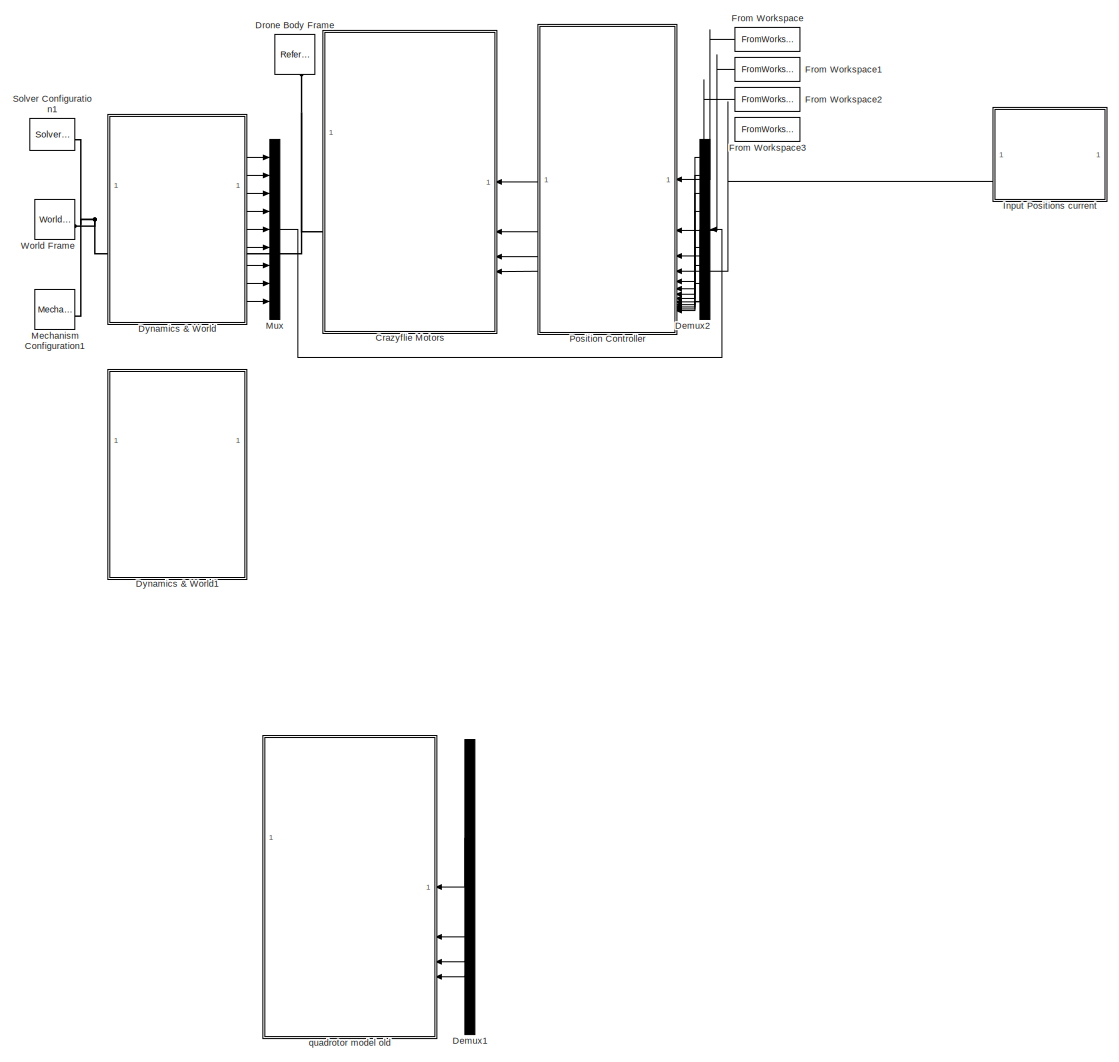
[diagram: root canvas - part 1/1, most of the canvas]
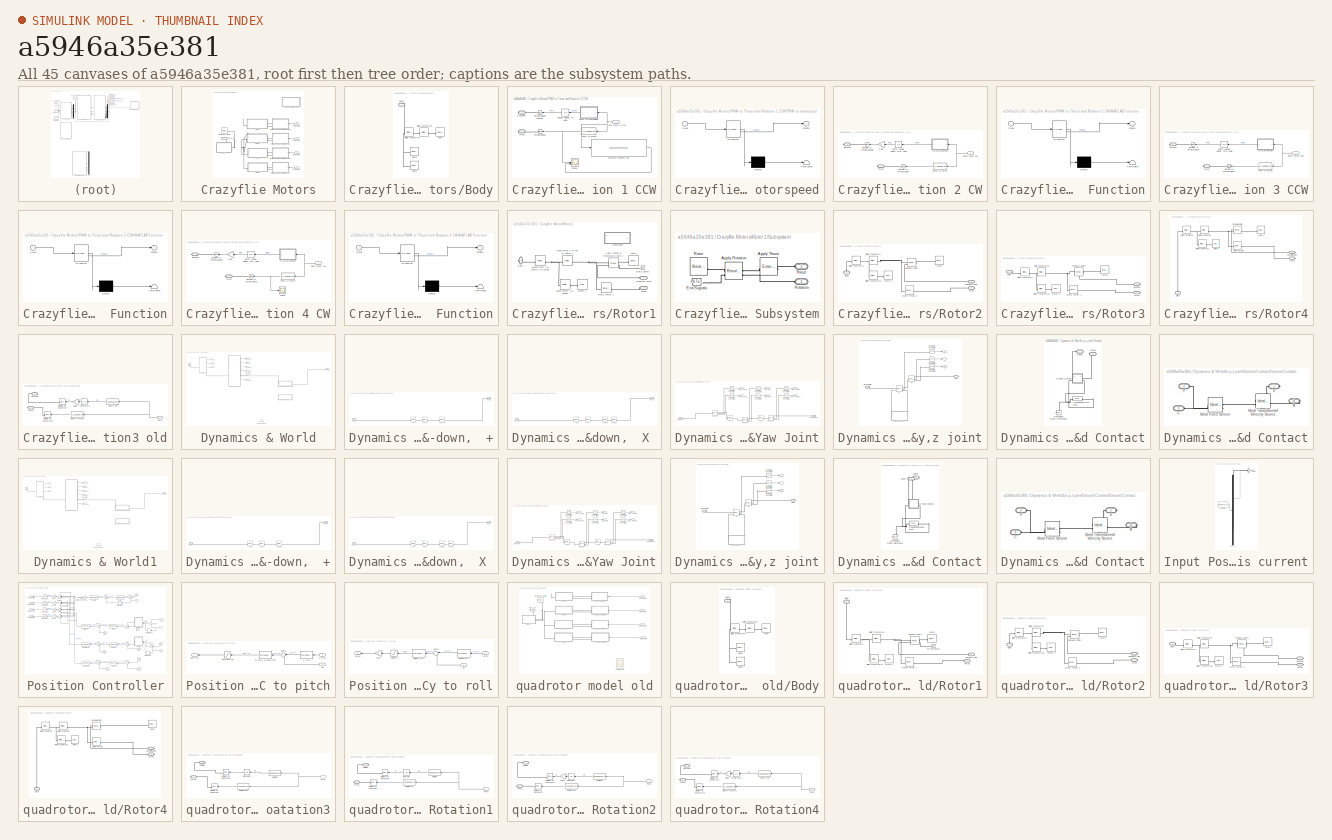
[diagram: thumbnail index - all 45 canvases of the model, root first then tree order]
MODEL slx_a5946a35e381
KIND model
CONFIG AbsTol = auto
CONFIG EnableMultiTasking = off
CONFIG FixedStep = 0.1
CONFIG InitFcn = set_param(gcs, 'StopTime', stop_time);\n%set_param(gcs, 'StopTime', '30');\n
CONFIG MaxStep = auto
CONFIG MinStep = auto
CONFIG RelTol = 1e-5
CONFIG SampleTimeConstraint = Unconstrained
CONFIG SolverName = VariableStepAuto
CONFIG StartTime = 0.0
CONFIG StopTime = 62.652
WORKSPACE source: mxarray member
WORKSPACE AttitudeRate_P = 400
BLOCK [SubSystem] Crazyflie Motors
BLOCK [SubSystem] Crazyflie Motors/Body
BLOCK [PMIOPort] Crazyflie Motors/Body/Conn1
  NameLocation = right
  Side = Right
BLOCK [Reference] Crazyflie Motors/Body/Rigid Transform4  REF=sm_lib/Frames and
Transforms/Rigid
Transform
  SourceBlock = sm_lib/Frames and\nTransforms/Rigid\nTransform
  SourceType = Rigid\nTransform
BLOCK [Reference] Crazyflie Motors/Body/Rigid Transform5  REF=sm_lib/Frames and
Transforms/Rigid
Transform
  SourceBlock = sm_lib/Frames and\nTransforms/Rigid\nTransform
  SourceType = Rigid\nTransform
BLOCK [Reference] Crazyflie Motors/Body/body  REF=sm_lib/Body Elements/Brick Solid
  NameLocation = top
  SourceBlock = sm_lib/Body Elements/Brick Solid
  SourceType = Brick Solid
BLOCK [Reference] Crazyflie Motors/Body/body1  REF=sm_lib/Body Elements/Brick Solid
  NameLocation = top
  SourceBlock = sm_lib/Body Elements/Brick Solid
  SourceType = Brick Solid
BLOCK [Reference] Crazyflie Motors/Body/body2  REF=sm_lib/Body Elements/Brick Solid
  NameLocation = top
  SourceBlock = sm_lib/Body Elements/Brick Solid
  SourceType = Brick Solid
BLOCK [Reference] Crazyflie Motors/Drone Body Frame  REF=sm_lib/Frames and
Transforms/Reference
Frame
  NameLocation = top
  SourceBlock = sm_lib/Frames and\nTransforms/Reference\nFrame
  SourceType = Reference\nFrame
BLOCK [SubSystem] Crazyflie Motors/PWM to Thrust and Rotation 1 CCW
BLOCK [Integrator] Crazyflie Motors/PWM to Thrust and Rotation 1 CCW/Angular Velocity to Angle
BLOCK [DiscreteTransferFcn] Crazyflie Motors/PWM to Thrust and Rotation 1 CCW/Discrete Transfer Fcn
  Denominator = [2.5*10^(9) -2.4237*10^9]
  InputPortMap = u0
  Numerator = [181 0]
BLOCK [Fcn] Crazyflie Motors/PWM to Thrust and Rotation 1 CCW/PWM to Thrust
  Expr = -(2.130295*10^(-11)*u^2+1.032633*10^(-6)*u+5.484560*10^(-4))
BLOCK [SubSystem] Crazyflie Motors/PWM to Thrust and Rotation 1 CCW/PWM to rotorspeed
  ErrorFcn = Stateflow.Translate.translate
  PermitHierarchicalResolution = ExplicitOnly
  SFBlockType = MATLAB Function
  TreatAsAtomicUnit = on
BLOCK [Demux] Crazyflie Motors/PWM to Thrust and Rotation 1 CCW/PWM to rotorspeed/ Demux 
  Outputs = 1
BLOCK [S-Function] Crazyflie Motors/PWM to Thrust and Rotation 1 CCW/PWM to rotorspeed/ SFunction 
  EnableBusSupport = on
  FunctionName = sf_sfun
  PortCounts = [1 2]
  SFcnIsStateOwnerBlock = off
  SFunctionDeploymentMode = off
  Tag = Stateflow S-Function 2
BLOCK [Terminator] Crazyflie Motors/PWM to Thrust and Rotation 1 CCW/PWM to rotorspeed/ Terminator 
BLOCK [Inport] Crazyflie Motors/PWM to Thrust and Rotation 1 CCW/PWM to rotorspeed/PWM
BLOCK [Outport] Crazyflie Motors/PWM to Thrust and Rotation 1 CCW/PWM to rotorspeed/dtheta
BLOCK [Reference] Crazyflie Motors/PWM to Thrust and Rotation 1 CCW/Physical signal  REF=nesl_utility/Simulink-PS
Converter
  SourceBlock = nesl_utility/Simulink-PS\nConverter
  SourceType = Simulink-PS\nConverter
BLOCK [Reference] Crazyflie Motors/PWM to Thrust and Rotation 1 CCW/Physical signal filtered  REF=nesl_utility/Simulink-PS
Converter
  SourceBlock = nesl_utility/Simulink-PS\nConverter
  SourceType = Simulink-PS\nConverter
BLOCK [PMIOPort] Crazyflie Motors/PWM to Thrust and Rotation 1 CCW/Rotation
  Side = Right
BLOCK [Inport] Crazyflie Motors/PWM to Thrust and Rotation 1 CCW/Rotor PWM CCW
BLOCK [Scope] Crazyflie Motors/PWM to Thrust and Rotation 1 CCW/Scope
  Floating = off
  NumInputPorts = 2
  ScopeSpecificationString = Simulink.scopes.TimeScopeBlockCfg('CurrentConfiguration', extmgr.ConfigurationSet(extmgr.Configuration('Core','General UI',true),extmgr.Configuration('Core','Source UI',true),extmgr.Configuration('Sources','WiredSimulink',true,'DataLoggingVariableName','ScopeData2'),extmgr.Configuration('Visuals','Time Domain',true,'SerializedDisplays',{struct('MinYLimReal','-0.11716','MaxYLimReal','0.11935','YLab...<+1537ch>
BLOCK [PMIOPort] Crazyflie Motors/PWM to Thrust and Rotation 1 CCW/Thrust
  Port = 2
  Side = Right
BLOCK [SubSystem] Crazyflie Motors/PWM to Thrust and Rotation 2 CW
BLOCK [Gain] Crazyflie Motors/PWM to Thrust and Rotation 2 CW/Gain
  Gain = -1
BLOCK [SubSystem] Crazyflie Motors/PWM to Thrust and Rotation 2 CW/MATLAB Function
  ErrorFcn = Stateflow.Translate.translate
  PermitHierarchicalResolution = ExplicitOnly
  SFBlockType = MATLAB Function
  TreatAsAtomicUnit = on
BLOCK [Demux] Crazyflie Motors/PWM to Thrust and Rotation 2 CW/MATLAB Function/ Demux 
  Outputs = 1
BLOCK [S-Function] Crazyflie Motors/PWM to Thrust and Rotation 2 CW/MATLAB Function/ SFunction 
  EnableBusSupport = on
  FunctionName = sf_sfun
  PortCounts = [1 2]
  SFcnIsStateOwnerBlock = off
  SFunctionDeploymentMode = off
  Tag = Stateflow S-Function 1
BLOCK [Terminator] Crazyflie Motors/PWM to Thrust and Rotation 2 CW/MATLAB Function/ Terminator 
BLOCK [Inport] Crazyflie Motors/PWM to Thrust and Rotation 2 CW/MATLAB Function/PWM
BLOCK [Outport] Crazyflie Motors/PWM to Thrust and Rotation 2 CW/MATLAB Function/dtheta
BLOCK [Fcn] Crazyflie Motors/PWM to Thrust and Rotation 2 CW/PWM to Thrust
  Expr = -(2.130295*10^(-11)*u^2+1.032633*10^(-6)*u+5.484560*10^(-4))
BLOCK [PMIOPort] Crazyflie Motors/PWM to Thrust and Rotation 2 CW/Rotation
  Side = Right
BLOCK [Integrator] Crazyflie Motors/PWM to Thrust and Rotation 2 CW/Rotor Angular Velocity to Rotor Angle
BLOCK [Inport] Crazyflie Motors/PWM to Thrust and Rotation 2 CW/Rotor PWM CW
BLOCK [Reference] Crazyflie Motors/PWM to Thrust and Rotation 2 CW/Simulink to Physical signal  REF=nesl_utility/Simulink-PS
Converter
  SourceBlock = nesl_utility/Simulink-PS\nConverter
  SourceType = Simulink-PS\nConverter
BLOCK [Reference] Crazyflie Motors/PWM to Thrust and Rotation 2 CW/Simulink to Physical signal1  REF=nesl_utility/Simulink-PS
Converter
  SourceBlock = nesl_utility/Simulink-PS\nConverter
  SourceType = Simulink-PS\nConverter
BLOCK [PMIOPort] Crazyflie Motors/PWM to Thrust and Rotation 2 CW/Thrust
  Port = 2
  Side = Right
BLOCK [SubSystem] Crazyflie Motors/PWM to Thrust and Rotation 3 CCW
BLOCK [SubSystem] Crazyflie Motors/PWM to Thrust and Rotation 3 CCW/MATLAB Function
  ErrorFcn = Stateflow.Translate.translate
  PermitHierarchicalResolution = ExplicitOnly
  SFBlockType = MATLAB Function
  TreatAsAtomicUnit = on
BLOCK [Demux] Crazyflie Motors/PWM to Thrust and Rotation 3 CCW/MATLAB Function/ Demux 
  Outputs = 1
BLOCK [S-Function] Crazyflie Motors/PWM to Thrust and Rotation 3 CCW/MATLAB Function/ SFunction 
  EnableBusSupport = on
  FunctionName = sf_sfun
  PortCounts = [1 2]
  SFcnIsStateOwnerBlock = off
  SFunctionDeploymentMode = off
  Tag = Stateflow S-Function 3
BLOCK [Terminator] Crazyflie Motors/PWM to Thrust and Rotation 3 CCW/MATLAB Function/ Terminator 
BLOCK [Inport] Crazyflie Motors/PWM to Thrust and Rotation 3 CCW/MATLAB Function/PWM
BLOCK [Outport] Crazyflie Motors/PWM to Thrust and Rotation 3 CCW/MATLAB Function/dtheta
BLOCK [Fcn] Crazyflie Motors/PWM to Thrust and Rotation 3 CCW/PWM to Thrust
  Expr = -(2.130295*10^(-11)*u^2+1.032633*10^(-6)*u+5.484560*10^(-4))
BLOCK [PMIOPort] Crazyflie Motors/PWM to Thrust and Rotation 3 CCW/Rotation
  Side = Right
BLOCK [Integrator] Crazyflie Motors/PWM to Thrust and Rotation 3 CCW/Rotor Angular Velocity to Rotor Angle
BLOCK [Inport] Crazyflie Motors/PWM to Thrust and Rotation 3 CCW/Rotor PWM CCW
BLOCK [Reference] Crazyflie Motors/PWM to Thrust and Rotation 3 CCW/Simulink to Physical signal  REF=nesl_utility/Simulink-PS
Converter
  SourceBlock = nesl_utility/Simulink-PS\nConverter
  SourceType = Simulink-PS\nConverter
BLOCK [Reference] Crazyflie Motors/PWM to Thrust and Rotation 3 CCW/Simulink to Physical signal1  REF=nesl_utility/Simulink-PS
Converter
  SourceBlock = nesl_utility/Simulink-PS\nConverter
  SourceType = Simulink-PS\nConverter
BLOCK [PMIOPort] Crazyflie Motors/PWM to Thrust and Rotation 3 CCW/Thrust
  Port = 2
  Side = Right
BLOCK [SubSystem] Crazyflie Motors/PWM to Thrust and Rotation 4 CW
BLOCK [Gain] Crazyflie Motors/PWM to Thrust and Rotation 4 CW/Gain
  Gain = -1
BLOCK [SubSystem] Crazyflie Motors/PWM to Thrust and Rotation 4 CW/MATLAB Function
  ErrorFcn = Stateflow.Translate.translate
  PermitHierarchicalResolution = ExplicitOnly
  SFBlockType = MATLAB Function
  TreatAsAtomicUnit = on
BLOCK [Demux] Crazyflie Motors/PWM to Thrust and Rotation 4 CW/MATLAB Function/ Demux 
  Outputs = 1
BLOCK [S-Function] Crazyflie Motors/PWM to Thrust and Rotation 4 CW/MATLAB Function/ SFunction 
  EnableBusSupport = on
  FunctionName = sf_sfun
  PortCounts = [1 2]
  SFcnIsStateOwnerBlock = off
  SFunctionDeploymentMode = off
  Tag = Stateflow S-Function 4
BLOCK [Terminator] Crazyflie Motors/PWM to Thrust and Rotation 4 CW/MATLAB Function/ Terminator 
BLOCK [Inport] Crazyflie Motors/PWM to Thrust and Rotation 4 CW/MATLAB Function/PWM
BLOCK [Outport] Crazyflie Motors/PWM to Thrust and Rotation 4 CW/MATLAB Function/dtheta
BLOCK [Fcn] Crazyflie Motors/PWM to Thrust and Rotation 4 CW/PWM to Thrust
  Expr = -(2.130295*10^(-11)*u^2+1.032633*10^(-6)*u+5.484560*10^(-4))
BLOCK [PMIOPort] Crazyflie Motors/PWM to Thrust and Rotation 4 CW/Rotation
  Side = Right
BLOCK [Integrator] Crazyflie Motors/PWM to Thrust and Rotation 4 CW/Rotor Angular Velocity to Rotor Angle
BLOCK [Inport] Crazyflie Motors/PWM to Thrust and Rotation 4 CW/Rotor PWM CW
BLOCK [Scope] Crazyflie Motors/PWM to Thrust and Rotation 4 CW/Scope
  Floating = off
  NumInputPorts = 1
  ScopeSpecificationString = Simulink.scopes.TimeScopeBlockCfg('CurrentConfiguration', extmgr.ConfigurationSet(extmgr.Configuration('Core','General UI',true),extmgr.Configuration('Core','Source UI',true),extmgr.Configuration('Sources','WiredSimulink',true,'DataLoggingVariableName','ScopeData4'),extmgr.Configuration('Visuals','Time Domain',true,'SerializedDisplays',{struct('MinYLimReal','-0.18117','MaxYLimReal','0.03342','YLab...<+1490ch>
BLOCK [Reference] Crazyflie Motors/PWM to Thrust and Rotation 4 CW/Simulink to Physical signal  REF=nesl_utility/Simulink-PS
Converter
  SourceBlock = nesl_utility/Simulink-PS\nConverter
  SourceType = Simulink-PS\nConverter
BLOCK [Reference] Crazyflie Motors/PWM to Thrust and Rotation 4 CW/Simulink to Physical signal1  REF=nesl_utility/Simulink-PS
Converter
  SourceBlock = nesl_utility/Simulink-PS\nConverter
  SourceType = Simulink-PS\nConverter
BLOCK [PMIOPort] Crazyflie Motors/PWM to Thrust and Rotation 4 CW/Thrust
  Port = 2
  Side = Right
BLOCK [SubSystem] Crazyflie Motors/Rotor1
BLOCK [Inport] Crazyflie Motors/Rotor1 PWM
BLOCK [Reference] Crazyflie Motors/Rotor1/  Motor Thrust 1  REF=sm_lib/Forces and
Torques/External Force
and Torque
  NameLocation = top
  SourceBlock = sm_lib/Forces and\nTorques/External Force\nand Torque
  SourceType = External Force\nand Torque
BLOCK [Reference] Crazyflie Motors/Rotor1/Apply Thrust & Rotation to rotor 1  REF=sm_lib/Joints/Revolute Joint
  SourceBlock = sm_lib/Joints/Revolute Joint
  SourceType = Revolute Joint
BLOCK [PMIOPort] Crazyflie Motors/Rotor1/Body
  NameLocation = top
  Side = Right
BLOCK [Reference] Crazyflie Motors/Rotor1/End Signals  REF=fl_lib/Physical Signals/Sinks/PS Terminator
  SourceBlock = fl_lib/Physical Signals/Sinks/PS Terminator
  SourceType = PS Terminator
BLOCK [Reference] Crazyflie Motors/Rotor1/Move Motor 1 to socket  REF=sm_lib/Frames and
Transforms/Rigid
Transform
  SourceBlock = sm_lib/Frames and\nTransforms/Rigid\nTransform
  SourceType = Rigid\nTransform
BLOCK [Reference] Crazyflie Motors/Rotor1/Move Rotor 1 & Motor 1 to corner  REF=sm_lib/Frames and
Transforms/Rigid
Transform
  SourceBlock = sm_lib/Frames and\nTransforms/Rigid\nTransform
  SourceType = Rigid\nTransform
BLOCK [Reference] Crazyflie Motors/Rotor1/Move Rotor 1 to top of Motor 1  REF=sm_lib/Frames and
Transforms/Rigid
Transform
  SourceBlock = sm_lib/Frames and\nTransforms/Rigid\nTransform
  SourceType = Rigid\nTransform
BLOCK [PMIOPort] Crazyflie Motors/Rotor1/Revolute Joint
  Port = 2
  Side = Left
BLOCK [SubSystem] Crazyflie Motors/Rotor1/Subsystem
  Commented = on
BLOCK [Reference] Crazyflie Motors/Rotor1/Subsystem/  Apply Thrust  REF=sm_lib/Forces and
Torques/External Force
and Torque
  NameLocation = top
  SourceBlock = sm_lib/Forces and\nTorques/External Force\nand Torque
  SourceType = External Force\nand Torque
BLOCK [Reference] Crazyflie Motors/Rotor1/Subsystem/Apply Rotation  REF=sm_lib/Joints/Revolute Joint
  SourceBlock = sm_lib/Joints/Revolute Joint
  SourceType = Revolute Joint
BLOCK [Reference] Crazyflie Motors/Rotor1/Subsystem/End Signals  REF=fl_lib/Physical Signals/Sinks/PS Terminator
  SourceBlock = fl_lib/Physical Signals/Sinks/PS Terminator
  SourceType = PS Terminator
BLOCK [PMIOPort] Crazyflie Motors/Rotor1/Subsystem/Rotation
  Side = Left
BLOCK [Reference] Crazyflie Motors/Rotor1/Subsystem/Rotor  REF=sm_lib/Body Elements/Brick Solid
  NameLocation = top
  SourceBlock = sm_lib/Body Elements/Brick Solid
  SourceType = Brick Solid
BLOCK [PMIOPort] Crazyflie Motors/Rotor1/Subsystem/Thrust
  Port = 2
  Side = Left
BLOCK [PMIOPort] Crazyflie Motors/Rotor1/Thrust
  Port = 3
  Side = Left
BLOCK [Reference] Crazyflie Motors/Rotor1/motor 1  REF=sm_lib/Body Elements/Cylindrical Solid
  NameLocation = top
  SourceBlock = sm_lib/Body Elements/Cylindrical Solid
  SourceType = Cylindrical Solid
BLOCK [Reference] Crazyflie Motors/Rotor1/rotor1  REF=sm_lib/Body Elements/Brick Solid
  NameLocation = top
  SourceBlock = sm_lib/Body Elements/Brick Solid
  SourceType = Brick Solid
BLOCK [SubSystem] Crazyflie Motors/Rotor2
BLOCK [Inport] Crazyflie Motors/Rotor2 PWM
  Port = 2
BLOCK [Reference] Crazyflie Motors/Rotor2/  Motor Thrust 2  REF=sm_lib/Forces and
Torques/External Force
and Torque
  NameLocation = top
  SourceBlock = sm_lib/Forces and\nTorques/External Force\nand Torque
  SourceType = External Force\nand Torque
BLOCK [PMIOPort] Crazyflie Motors/Rotor2/Body
  NameLocation = right
  Side = Left
BLOCK [PMIOPort] Crazyflie Motors/Rotor2/Revolute Joint
  Port = 2
  Side = Right
BLOCK [Reference] Crazyflie Motors/Rotor2/Revolute Joint2  REF=sm_lib/Joints/Revolute Joint
  SourceBlock = sm_lib/Joints/Revolute Joint
  SourceType = Revolute Joint
BLOCK [Reference] Crazyflie Motors/Rotor2/Rigid Transform1  REF=sm_lib/Frames and
Transforms/Rigid
Transform
  SourceBlock = sm_lib/Frames and\nTransforms/Rigid\nTransform
  SourceType = Rigid\nTransform
BLOCK [Reference] Crazyflie Motors/Rotor2/Rigid Transform11  REF=sm_lib/Frames and
Transforms/Rigid
Transform
  SourceBlock = sm_lib/Frames and\nTransforms/Rigid\nTransform
  SourceType = Rigid\nTransform
BLOCK [Reference] Crazyflie Motors/Rotor2/Rigid Transform7  REF=sm_lib/Frames and
Transforms/Rigid
Transform
  SourceBlock = sm_lib/Frames and\nTransforms/Rigid\nTransform
  SourceType = Rigid\nTransform
BLOCK [PMIOPort] Crazyflie Motors/Rotor2/Thrust
  Port = 3
  Side = Right
BLOCK [Reference] Crazyflie Motors/Rotor2/motor 2  REF=sm_lib/Body Elements/Cylindrical Solid
  NameLocation = top
  SourceBlock = sm_lib/Body Elements/Cylindrical Solid
  SourceType = Cylindrical Solid
BLOCK [Reference] Crazyflie Motors/Rotor2/rotor2  REF=sm_lib/Body Elements/Brick Solid
  NameLocation = top
  SourceBlock = sm_lib/Body Elements/Brick Solid
  SourceType = Brick Solid
BLOCK [SubSystem] Crazyflie Motors/Rotor3
BLOCK [Inport] Crazyflie Motors/Rotor3 PWM
  Port = 3
BLOCK [Reference] Crazyflie Motors/Rotor3/  Motor Thrust 3  REF=sm_lib/Forces and
Torques/External Force
and Torque
  NameLocation = top
  SourceBlock = sm_lib/Forces and\nTorques/External Force\nand Torque
  SourceType = External Force\nand Torque
BLOCK [PMIOPort] Crazyflie Motors/Rotor3/Body
  Side = Left
BLOCK [PMIOPort] Crazyflie Motors/Rotor3/Revolute
  Port = 2
  Side = Right
BLOCK [Reference] Crazyflie Motors/Rotor3/Revolute Joint3  REF=sm_lib/Joints/Revolute Joint
  SourceBlock = sm_lib/Joints/Revolute Joint
  SourceType = Revolute Joint
BLOCK [Reference] Crazyflie Motors/Rotor3/Rigid Transform12  REF=sm_lib/Frames and
Transforms/Rigid
Transform
  SourceBlock = sm_lib/Frames and\nTransforms/Rigid\nTransform
  SourceType = Rigid\nTransform
BLOCK [Reference] Crazyflie Motors/Rotor3/Rigid Transform2  REF=sm_lib/Frames and
Transforms/Rigid
Transform
  SourceBlock = sm_lib/Frames and\nTransforms/Rigid\nTransform
  SourceType = Rigid\nTransform
BLOCK [Reference] Crazyflie Motors/Rotor3/Rigid Transform8  REF=sm_lib/Frames and
Transforms/Rigid
Transform
  SourceBlock = sm_lib/Frames and\nTransforms/Rigid\nTransform
  SourceType = Rigid\nTransform
BLOCK [PMIOPort] Crazyflie Motors/Rotor3/Thrust
  Port = 3
  Side = Right
BLOCK [Reference] Crazyflie Motors/Rotor3/motor 3  REF=sm_lib/Body Elements/Cylindrical Solid
  NameLocation = top
  SourceBlock = sm_lib/Body Elements/Cylindrical Solid
  SourceType = Cylindrical Solid
BLOCK [Reference] Crazyflie Motors/Rotor3/rotor3  REF=sm_lib/Body Elements/Brick Solid
  NameLocation = top
  SourceBlock = sm_lib/Body Elements/Brick Solid
  SourceType = Brick Solid
BLOCK [SubSystem] Crazyflie Motors/Rotor4
BLOCK [Inport] Crazyflie Motors/Rotor4 PWM
  Port = 4
BLOCK [Reference] Crazyflie Motors/Rotor4/  Motor Thrust 4  REF=sm_lib/Forces and
Torques/External Force
and Torque
  SourceBlock = sm_lib/Forces and\nTorques/External Force\nand Torque
  SourceType = External Force\nand Torque
BLOCK [PMIOPort] Crazyflie Motors/Rotor4/Body
  NameLocation = right
  Port = 3
  Side = Left
BLOCK [PMIOPort] Crazyflie Motors/Rotor4/Revolute Joint
  Side = Right
BLOCK [Reference] Crazyflie Motors/Rotor4/Revolute Joint4  REF=sm_lib/Joints/Revolute Joint
  SourceBlock = sm_lib/Joints/Revolute Joint
  SourceType = Revolute Joint
BLOCK [Reference] Crazyflie Motors/Rotor4/Rigid Transform13  REF=sm_lib/Frames and
Transforms/Rigid
Transform
  SourceBlock = sm_lib/Frames and\nTransforms/Rigid\nTransform
  SourceType = Rigid\nTransform
BLOCK [Reference] Crazyflie Motors/Rotor4/Rigid Transform3  REF=sm_lib/Frames and
Transforms/Rigid
Transform
  SourceBlock = sm_lib/Frames and\nTransforms/Rigid\nTransform
  SourceType = Rigid\nTransform
BLOCK [Reference] Crazyflie Motors/Rotor4/Rigid Transform9  REF=sm_lib/Frames and
Transforms/Rigid
Transform
  SourceBlock = sm_lib/Frames and\nTransforms/Rigid\nTransform
  SourceType = Rigid\nTransform
BLOCK [PMIOPort] Crazyflie Motors/Rotor4/Thrust
  Port = 2
  Side = Right
BLOCK [Reference] Crazyflie Motors/Rotor4/motor 4  REF=sm_lib/Body Elements/Cylindrical Solid
  NameLocation = top
  SourceBlock = sm_lib/Body Elements/Cylindrical Solid
  SourceType = Cylindrical Solid
BLOCK [Reference] Crazyflie Motors/Rotor4/rotor4  REF=sm_lib/Body Elements/Brick Solid
  NameLocation = top
  SourceBlock = sm_lib/Body Elements/Brick Solid
  SourceType = Brick Solid
BLOCK [SubSystem] Crazyflie Motors/Thrust and Rotation3 old
  Commented = on
  NameLocation = top
BLOCK [Gain] Crazyflie Motors/Thrust and Rotation3 old/Gain4
  Gain = -1
BLOCK [Integrator] Crazyflie Motors/Thrust and Rotation3 old/Integrator3
  NameLocation = top
BLOCK [Inport] Crazyflie Motors/Thrust and Rotation3 old/PWM
BLOCK [PMIOPort] Crazyflie Motors/Thrust and Rotation3 old/Rotation
  Side = Right
BLOCK [Reference] Crazyflie Motors/Thrust and Rotation3 old/Simulink-PS Converter6  REF=nesl_utility/Simulink-PS
Converter
  NameLocation = top
  SourceBlock = nesl_utility/Simulink-PS\nConverter
  SourceType = Simulink-PS\nConverter
BLOCK [Reference] Crazyflie Motors/Thrust and Rotation3 old/Simulink-PS Converter7  REF=nesl_utility/Simulink-PS
Converter
  NameLocation = top
  SourceBlock = nesl_utility/Simulink-PS\nConverter
  SourceType = Simulink-PS\nConverter
BLOCK [PMIOPort] Crazyflie Motors/Thrust and Rotation3 old/Thrust
  Port = 2
  Side = Right
BLOCK [Fcn] Crazyflie Motors/Thrust and Rotation3 old/pwm to thrust3
  Expr = -(2.130295*10^(-11)*u^2 + 1.032633*10^(-6)*u + 5.484560*10^(-4))
  NameLocation = top
BLOCK [Fcn] Crazyflie Motors/Thrust and Rotation3 old/pwm to w3
  Expr = (0.03950236*u + 420.9420)*(u>1000)
  NameLocation = top
BLOCK [PMIOPort] Crazyflie Motors/body_ref
  NameLocation = top
  Side = Right
BLOCK [Demux] Demux1
  Commented = on
  NameLocation = top
BLOCK [Demux] Demux2
  NameLocation = top
  Outputs = 9
BLOCK [Reference] Drone Body Frame  REF=sm_lib/Frames and
Transforms/Reference
Frame
  NameLocation = left
  SourceBlock = sm_lib/Frames and\nTransforms/Reference\nFrame
  SourceType = Reference\nFrame
BLOCK [SubSystem] Dynamics & World
  PortSchema = {"entries":[{"content":{"sides":[{"content":{"connectorIds":["LConn1"]},"type":"ConnectorPlacement.EquallySpacedRectSide","uuid":"9c519bac-ad9c-4d4d-99d0-1999b098f180"},{"content":{"connectorIds":["RConn1","Out1","Out2","Out3","Out4","Out5","Out6","Out7","Out8","Out9"],"side":"RIGHT"},"type":"ConnectorPlacement.EquallySpacedRectSide","uuid":"dc20253c-e68b-4db5-a305-dc13e3a645e6"},{"content":{"side...<+290ch>
BLOCK [SubSystem] Dynamics & World/Drone Reference Frame z-down,  +
  Commented = on
BLOCK [PMIOPort] Dynamics & World/Drone Reference Frame z-down,  +/Conn1
  Side = Right
BLOCK [PMIOPort] Dynamics & World/Drone Reference Frame z-down,  +/Conn2
  Port = 2
  Side = Left
BLOCK [Reference] Dynamics & World/Drone Reference Frame z-down,  +/x +90  REF=sm_lib/Frames and
Transforms/Rigid
Transform
  SourceBlock = sm_lib/Frames and\nTransforms/Rigid\nTransform
  SourceType = Rigid\nTransform
BLOCK [Reference] Dynamics & World/Drone Reference Frame z-down,  +/y -90  REF=sm_lib/Frames and
Transforms/Rigid
Transform
  SourceBlock = sm_lib/Frames and\nTransforms/Rigid\nTransform
  SourceType = Rigid\nTransform
BLOCK [Reference] Dynamics & World/Drone Reference Frame z-down,  +/z-down  REF=sm_lib/Frames and
Transforms/Rigid
Transform
  SourceBlock = sm_lib/Frames and\nTransforms/Rigid\nTransform
  SourceType = Rigid\nTransform
BLOCK [SubSystem] Dynamics & World/Drone Reference Frame z-down,  X 
BLOCK [Reference] Dynamics & World/Drone Reference Frame z-down,  X /45deg  REF=sm_lib/Frames and
Transforms/Rigid
Transform
  SourceBlock = sm_lib/Frames and\nTransforms/Rigid\nTransform
  SourceType = Rigid\nTransform
BLOCK [PMIOPort] Dynamics & World/Drone Reference Frame z-down,  X /Conn1
  Side = Right
BLOCK [PMIOPort] Dynamics & World/Drone Reference Frame z-down,  X /Conn2
  Port = 2
  Side = Left
BLOCK [Reference] Dynamics & World/Drone Reference Frame z-down,  X /x +90  REF=sm_lib/Frames and
Transforms/Rigid
Transform
  SourceBlock = sm_lib/Frames and\nTransforms/Rigid\nTransform
  SourceType = Rigid\nTransform
BLOCK [Reference] Dynamics & World/Drone Reference Frame z-down,  X /y -90  REF=sm_lib/Frames and
Transforms/Rigid
Transform
  SourceBlock = sm_lib/Frames and\nTransforms/Rigid\nTransform
  SourceType = Rigid\nTransform
BLOCK [Reference] Dynamics & World/Drone Reference Frame z-down,  X /z-down  REF=sm_lib/Frames and
Transforms/Rigid
Transform
  SourceBlock = sm_lib/Frames and\nTransforms/Rigid\nTransform
  SourceType = Rigid\nTransform
BLOCK [Reference] Dynamics & World/Reference Frame3  REF=sm_lib/Frames and
Transforms/Reference
Frame
  Commented = on
  NameLocation = right
  SourceBlock = sm_lib/Frames and\nTransforms/Reference\nFrame
  SourceType = Reference\nFrame
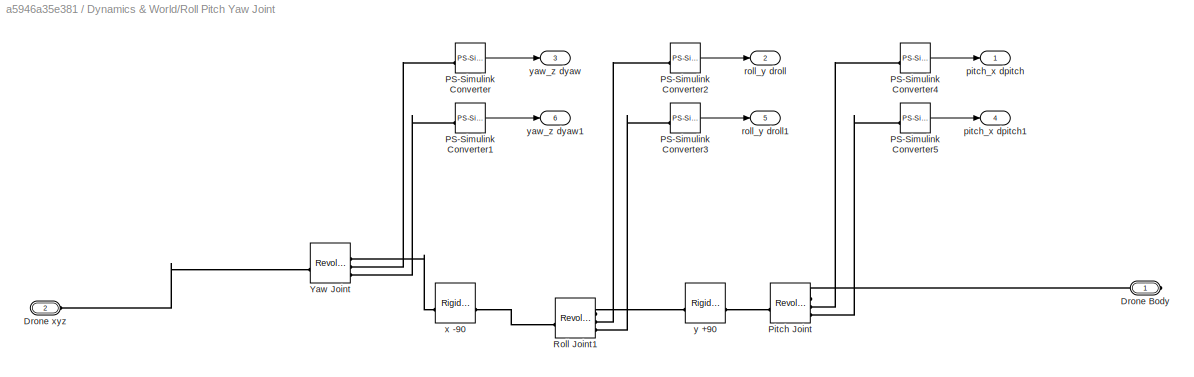
BLOCK [SubSystem] Dynamics & World/Roll Pitch Yaw Joint
BLOCK [PMIOPort] Dynamics & World/Roll Pitch Yaw Joint/Drone Body
  Side = Right
BLOCK [PMIOPort] Dynamics & World/Roll Pitch Yaw Joint/Drone xyz
  Port = 2
  Side = Left
BLOCK [Reference] Dynamics & World/Roll Pitch Yaw Joint/PS-Simulink Converter  REF=nesl_utility/PS-Simulink
Converter
  SourceBlock = nesl_utility/PS-Simulink\nConverter
  SourceType = PS-Simulink\nConverter
BLOCK [Reference] Dynamics & World/Roll Pitch Yaw Joint/PS-Simulink Converter1  REF=nesl_utility/PS-Simulink
Converter
  SourceBlock = nesl_utility/PS-Simulink\nConverter
  SourceType = PS-Simulink\nConverter
BLOCK [Reference] Dynamics & World/Roll Pitch Yaw Joint/PS-Simulink Converter2  REF=nesl_utility/PS-Simulink
Converter
  SourceBlock = nesl_utility/PS-Simulink\nConverter
  SourceType = PS-Simulink\nConverter
BLOCK [Reference] Dynamics & World/Roll Pitch Yaw Joint/PS-Simulink Converter3  REF=nesl_utility/PS-Simulink
Converter
  SourceBlock = nesl_utility/PS-Simulink\nConverter
  SourceType = PS-Simulink\nConverter
BLOCK [Reference] Dynamics & World/Roll Pitch Yaw Joint/PS-Simulink Converter4  REF=nesl_utility/PS-Simulink
Converter
  SourceBlock = nesl_utility/PS-Simulink\nConverter
  SourceType = PS-Simulink\nConverter
BLOCK [Reference] Dynamics & World/Roll Pitch Yaw Joint/PS-Simulink Converter5  REF=nesl_utility/PS-Simulink
Converter
  SourceBlock = nesl_utility/PS-Simulink\nConverter
  SourceType = PS-Simulink\nConverter
BLOCK [Reference] Dynamics & World/Roll Pitch Yaw Joint/Pitch Joint  REF=sm_lib/Joints/Revolute Joint
  SourceBlock = sm_lib/Joints/Revolute Joint
  SourceType = Revolute Joint
BLOCK [Reference] Dynamics & World/Roll Pitch Yaw Joint/Roll Joint1  REF=sm_lib/Joints/Revolute Joint
  SourceBlock = sm_lib/Joints/Revolute Joint
  SourceType = Revolute Joint
BLOCK [Reference] Dynamics & World/Roll Pitch Yaw Joint/Yaw Joint  REF=sm_lib/Joints/Revolute Joint
  SourceBlock = sm_lib/Joints/Revolute Joint
  SourceType = Revolute Joint
BLOCK [Outport] Dynamics & World/Roll Pitch Yaw Joint/pitch_x dpitch
BLOCK [Outport] Dynamics & World/Roll Pitch Yaw Joint/pitch_x dpitch1
  Port = 4
BLOCK [Outport] Dynamics & World/Roll Pitch Yaw Joint/roll_y droll
  Port = 2
BLOCK [Outport] Dynamics & World/Roll Pitch Yaw Joint/roll_y droll1
  Port = 5
BLOCK [Reference] Dynamics & World/Roll Pitch Yaw Joint/x -90  REF=sm_lib/Frames and
Transforms/Rigid
Transform
  SourceBlock = sm_lib/Frames and\nTransforms/Rigid\nTransform
  SourceType = Rigid\nTransform
BLOCK [Reference] Dynamics & World/Roll Pitch Yaw Joint/y +90  REF=sm_lib/Frames and
Transforms/Rigid
Transform
  SourceBlock = sm_lib/Frames and\nTransforms/Rigid\nTransform
  SourceType = Rigid\nTransform
BLOCK [Outport] Dynamics & World/Roll Pitch Yaw Joint/yaw_z dyaw
  Port = 3
BLOCK [Outport] Dynamics & World/Roll Pitch Yaw Joint/yaw_z dyaw1
  Port = 6
BLOCK [PMIOPort] Dynamics & World/body_ref
  Port = 2
  Side = Right
BLOCK [Outport] Dynamics & World/pitch_x dpitch
  Port = 4
BLOCK [Outport] Dynamics & World/pitch_x dpitch1
  Port = 7
BLOCK [Outport] Dynamics & World/roll_y droll
  Port = 5
BLOCK [Outport] Dynamics & World/roll_y droll1
  Port = 8
BLOCK [PMIOPort] Dynamics & World/world ref
  Side = Left
BLOCK [Outport] Dynamics & World/x
  Port = 2
BLOCK [SubSystem] Dynamics & World/x,y,z joint
BLOCK [PMIOPort] Dynamics & World/x,y,z joint/Drone
  Side = Right
BLOCK [PMIOPort] Dynamics & World/x,y,z joint/Ground - World
  Port = 2
  Side = Left
BLOCK [SubSystem] Dynamics & World/x,y,z joint/Ground Contact
BLOCK [PMIOPort] Dynamics & World/x,y,z joint/Ground Contact/Conn1
  Side = Left
BLOCK [PMIOPort] Dynamics & World/x,y,z joint/Ground Contact/Conn2
  Port = 2
  Side = Right
BLOCK [SubSystem] Dynamics & World/x,y,z joint/Ground Contact/Ground Contact
BLOCK [PMIOPort] Dynamics & World/x,y,z joint/Ground Contact/Ground Contact/C
  Port = 3
  Side = Left
BLOCK [PMIOPort] Dynamics & World/x,y,z joint/Ground Contact/Ground Contact/F
  NameLocation = top
  Port = 2
  Side = Left
BLOCK [Reference] Dynamics & World/x,y,z joint/Ground Contact/Ground Contact/Ideal Force Sensor  REF=fl_lib/Mechanical/Mechanical Sensors/Ideal Force Sensor
  SourceBlock = fl_lib/Mechanical/Mechanical Sensors/Ideal Force Sensor
  SourceType = Ideal Force Sensor
BLOCK [Reference] Dynamics & World/x,y,z joint/Ground Contact/Ground Contact/Ideal Translational Velocity Source  REF=fl_lib/Mechanical/Mechanical Sources/Ideal Translational
Velocity Source
  SourceBlock = fl_lib/Mechanical/Mechanical Sources/Ideal Translational\nVelocity Source
  SourceType = Ideal Translational\nVelocity Source
BLOCK [PMIOPort] Dynamics & World/x,y,z joint/Ground Contact/Ground Contact/R
  Port = 4
  Side = Right
BLOCK [PMIOPort] Dynamics & World/x,y,z joint/Ground Contact/Ground Contact/V
  NameLocation = top
  Side = Right
BLOCK [Reference] Dynamics & World/x,y,z joint/Ground Contact/Mechanical Translational Reference  REF=fl_lib/Mechanical/Translational
Elements/Mechanical
Translational
Reference
  NameLocation = right
  SourceBlock = fl_lib/Mechanical/Translational\nElements/Mechanical\nTranslational\nReference
  SourceType = Mechanical\nTranslational\nReference
BLOCK [Reference] Dynamics & World/x,y,z joint/Ground Contact/Translational Hard Stop  REF=fl_lib/Mechanical/Translational
Elements/Translational Hard
Stop
  SourceBlock = fl_lib/Mechanical/Translational\nElements/Translational Hard\nStop
  SourceType = Translational Hard\nStop
BLOCK [Reference] Dynamics & World/x,y,z joint/PS-Simulink Converter6  REF=nesl_utility/PS-Simulink
Converter
  SourceBlock = nesl_utility/PS-Simulink\nConverter
  SourceType = PS-Simulink\nConverter
BLOCK [Reference] Dynamics & World/x,y,z joint/PS-Simulink Converter7  REF=nesl_utility/PS-Simulink
Converter
  SourceBlock = nesl_utility/PS-Simulink\nConverter
  SourceType = PS-Simulink\nConverter
BLOCK [Reference] Dynamics & World/x,y,z joint/PS-Simulink Converter8  REF=nesl_utility/PS-Simulink
Converter
  SourceBlock = nesl_utility/PS-Simulink\nConverter
  SourceType = PS-Simulink\nConverter
BLOCK [Reference] Dynamics & World/x,y,z joint/X, Y  REF=sm_lib/Joints/Rectangular
Joint
  SourceBlock = sm_lib/Joints/Rectangular\nJoint
  SourceType = Rectangular\nJoint
BLOCK [Reference] Dynamics & World/x,y,z joint/Z  REF=sm_lib/Joints/Prismatic
Joint
  SourceBlock = sm_lib/Joints/Prismatic\nJoint
  SourceType = Prismatic\nJoint
BLOCK [Outport] Dynamics & World/x,y,z joint/x
  Port = 2
BLOCK [Outport] Dynamics & World/x,y,z joint/y
  Port = 3
BLOCK [Outport] Dynamics & World/x,y,z joint/z
BLOCK [Outport] Dynamics & World/y
  Port = 3
BLOCK [Outport] Dynamics & World/yaw_z dyaw
  Port = 6
BLOCK [Outport] Dynamics & World/yaw_z dyaw1
  Port = 9
BLOCK [Outport] Dynamics & World/z
BLOCK [SubSystem] Dynamics & World1
  Commented = on
  PortSchema = {"entries":[{"content":{"sides":[{"content":{"connectorIds":["LConn1"]},"type":"ConnectorPlacement.EquallySpacedRectSide","uuid":"9c519bac-ad9c-4d4d-99d0-1999b098f180"},{"content":{"connectorIds":["RConn1","Out1","Out2","Out3","Out4","Out5","Out6","Out7","Out8","Out9"],"side":"RIGHT"},"type":"ConnectorPlacement.EquallySpacedRectSide","uuid":"dc20253c-e68b-4db5-a305-dc13e3a645e6"},{"content":{"side...<+290ch>
BLOCK [SubSystem] Dynamics & World1/Drone Reference Frame z-down,  +
  Commented = on
BLOCK [PMIOPort] Dynamics & World1/Drone Reference Frame z-down,  +/Conn1
  Side = Right
BLOCK [PMIOPort] Dynamics & World1/Drone Reference Frame z-down,  +/Conn2
  Port = 2
  Side = Left
BLOCK [Reference] Dynamics & World1/Drone Reference Frame z-down,  +/x +90  REF=sm_lib/Frames and
Transforms/Rigid
Transform
  SourceBlock = sm_lib/Frames and\nTransforms/Rigid\nTransform
  SourceType = Rigid\nTransform
BLOCK [Reference] Dynamics & World1/Drone Reference Frame z-down,  +/y -90  REF=sm_lib/Frames and
Transforms/Rigid
Transform
  SourceBlock = sm_lib/Frames and\nTransforms/Rigid\nTransform
  SourceType = Rigid\nTransform
BLOCK [Reference] Dynamics & World1/Drone Reference Frame z-down,  +/z-down  REF=sm_lib/Frames and
Transforms/Rigid
Transform
  SourceBlock = sm_lib/Frames and\nTransforms/Rigid\nTransform
  SourceType = Rigid\nTransform
BLOCK [SubSystem] Dynamics & World1/Drone Reference Frame z-down,  X 
BLOCK [Reference] Dynamics & World1/Drone Reference Frame z-down,  X /45deg  REF=sm_lib/Frames and
Transforms/Rigid
Transform
  SourceBlock = sm_lib/Frames and\nTransforms/Rigid\nTransform
  SourceType = Rigid\nTransform
BLOCK [PMIOPort] Dynamics & World1/Drone Reference Frame z-down,  X /Conn1
  Side = Right
BLOCK [PMIOPort] Dynamics & World1/Drone Reference Frame z-down,  X /Conn2
  Port = 2
  Side = Left
BLOCK [Reference] Dynamics & World1/Drone Reference Frame z-down,  X /x +90  REF=sm_lib/Frames and
Transforms/Rigid
Transform
  SourceBlock = sm_lib/Frames and\nTransforms/Rigid\nTransform
  SourceType = Rigid\nTransform
BLOCK [Reference] Dynamics & World1/Drone Reference Frame z-down,  X /y -90  REF=sm_lib/Frames and
Transforms/Rigid
Transform
  SourceBlock = sm_lib/Frames and\nTransforms/Rigid\nTransform
  SourceType = Rigid\nTransform
BLOCK [Reference] Dynamics & World1/Drone Reference Frame z-down,  X /z-down  REF=sm_lib/Frames and
Transforms/Rigid
Transform
  SourceBlock = sm_lib/Frames and\nTransforms/Rigid\nTransform
  SourceType = Rigid\nTransform
BLOCK [Reference] Dynamics & World1/Reference Frame3  REF=sm_lib/Frames and
Transforms/Reference
Frame
  Commented = on
  NameLocation = right
  SourceBlock = sm_lib/Frames and\nTransforms/Reference\nFrame
  SourceType = Reference\nFrame
BLOCK [SubSystem] Dynamics & World1/Roll Pitch Yaw Joint
BLOCK [PMIOPort] Dynamics & World1/Roll Pitch Yaw Joint/Drone Body
  Side = Right
BLOCK [PMIOPort] Dynamics & World1/Roll Pitch Yaw Joint/Drone xyz
  Port = 2
  Side = Left
BLOCK [Reference] Dynamics & World1/Roll Pitch Yaw Joint/PS-Simulink Converter  REF=nesl_utility/PS-Simulink
Converter
  SourceBlock = nesl_utility/PS-Simulink\nConverter
  SourceType = PS-Simulink\nConverter
BLOCK [Reference] Dynamics & World1/Roll Pitch Yaw Joint/PS-Simulink Converter1  REF=nesl_utility/PS-Simulink
Converter
  SourceBlock = nesl_utility/PS-Simulink\nConverter
  SourceType = PS-Simulink\nConverter
BLOCK [Reference] Dynamics & World1/Roll Pitch Yaw Joint/PS-Simulink Converter2  REF=nesl_utility/PS-Simulink
Converter
  SourceBlock = nesl_utility/PS-Simulink\nConverter
  SourceType = PS-Simulink\nConverter
BLOCK [Reference] Dynamics & World1/Roll Pitch Yaw Joint/PS-Simulink Converter3  REF=nesl_utility/PS-Simulink
Converter
  SourceBlock = nesl_utility/PS-Simulink\nConverter
  SourceType = PS-Simulink\nConverter
BLOCK [Reference] Dynamics & World1/Roll Pitch Yaw Joint/PS-Simulink Converter4  REF=nesl_utility/PS-Simulink
Converter
  SourceBlock = nesl_utility/PS-Simulink\nConverter
  SourceType = PS-Simulink\nConverter
BLOCK [Reference] Dynamics & World1/Roll Pitch Yaw Joint/PS-Simulink Converter5  REF=nesl_utility/PS-Simulink
Converter
  SourceBlock = nesl_utility/PS-Simulink\nConverter
  SourceType = PS-Simulink\nConverter
BLOCK [Reference] Dynamics & World1/Roll Pitch Yaw Joint/Pitch Joint  REF=sm_lib/Joints/Revolute Joint
  SourceBlock = sm_lib/Joints/Revolute Joint
  SourceType = Revolute Joint
BLOCK [Reference] Dynamics & World1/Roll Pitch Yaw Joint/Roll Joint1  REF=sm_lib/Joints/Revolute Joint
  SourceBlock = sm_lib/Joints/Revolute Joint
  SourceType = Revolute Joint
BLOCK [Reference] Dynamics & World1/Roll Pitch Yaw Joint/Yaw Joint  REF=sm_lib/Joints/Revolute Joint
  SourceBlock = sm_lib/Joints/Revolute Joint
  SourceType = Revolute Joint
BLOCK [Outport] Dynamics & World1/Roll Pitch Yaw Joint/pitch_x dpitch
BLOCK [Outport] Dynamics & World1/Roll Pitch Yaw Joint/pitch_x dpitch1
  Port = 4
BLOCK [Outport] Dynamics & World1/Roll Pitch Yaw Joint/roll_y droll
  Port = 2
BLOCK [Outport] Dynamics & World1/Roll Pitch Yaw Joint/roll_y droll1
  Port = 5
BLOCK [Reference] Dynamics & World1/Roll Pitch Yaw Joint/x -90  REF=sm_lib/Frames and
Transforms/Rigid
Transform
  SourceBlock = sm_lib/Frames and\nTransforms/Rigid\nTransform
  SourceType = Rigid\nTransform
BLOCK [Reference] Dynamics & World1/Roll Pitch Yaw Joint/y +90  REF=sm_lib/Frames and
Transforms/Rigid
Transform
  SourceBlock = sm_lib/Frames and\nTransforms/Rigid\nTransform
  SourceType = Rigid\nTransform
BLOCK [Outport] Dynamics & World1/Roll Pitch Yaw Joint/yaw_z dyaw
  Port = 3
BLOCK [Outport] Dynamics & World1/Roll Pitch Yaw Joint/yaw_z dyaw1
  Port = 6
BLOCK [PMIOPort] Dynamics & World1/body_ref
  Port = 2
  Side = Right
BLOCK [Outport] Dynamics & World1/pitch_x dpitch
  Port = 4
BLOCK [Outport] Dynamics & World1/pitch_x dpitch1
  Port = 7
BLOCK [Outport] Dynamics & World1/roll_y droll
  Port = 5
BLOCK [Outport] Dynamics & World1/roll_y droll1
  Port = 8
BLOCK [PMIOPort] Dynamics & World1/world ref
  Side = Left
BLOCK [Outport] Dynamics & World1/x
  Port = 2
BLOCK [SubSystem] Dynamics & World1/x,y,z joint
BLOCK [PMIOPort] Dynamics & World1/x,y,z joint/Drone
  Side = Right
BLOCK [PMIOPort] Dynamics & World1/x,y,z joint/Ground - World
  Port = 2
  Side = Left
BLOCK [SubSystem] Dynamics & World1/x,y,z joint/Ground Contact
BLOCK [PMIOPort] Dynamics & World1/x,y,z joint/Ground Contact/Conn1
  Side = Left
BLOCK [PMIOPort] Dynamics & World1/x,y,z joint/Ground Contact/Conn2
  Port = 2
  Side = Right
BLOCK [SubSystem] Dynamics & World1/x,y,z joint/Ground Contact/Ground Contact
BLOCK [PMIOPort] Dynamics & World1/x,y,z joint/Ground Contact/Ground Contact/C
  Port = 3
  Side = Left
BLOCK [PMIOPort] Dynamics & World1/x,y,z joint/Ground Contact/Ground Contact/F
  NameLocation = top
  Port = 2
  Side = Left
BLOCK [Reference] Dynamics & World1/x,y,z joint/Ground Contact/Ground Contact/Ideal Force Sensor  REF=fl_lib/Mechanical/Mechanical Sensors/Ideal Force Sensor
  SourceBlock = fl_lib/Mechanical/Mechanical Sensors/Ideal Force Sensor
  SourceType = Ideal Force Sensor
BLOCK [Reference] Dynamics & World1/x,y,z joint/Ground Contact/Ground Contact/Ideal Translational Velocity Source  REF=fl_lib/Mechanical/Mechanical Sources/Ideal Translational
Velocity Source
  SourceBlock = fl_lib/Mechanical/Mechanical Sources/Ideal Translational\nVelocity Source
  SourceType = Ideal Translational\nVelocity Source
BLOCK [PMIOPort] Dynamics & World1/x,y,z joint/Ground Contact/Ground Contact/R
  Port = 4
  Side = Right
BLOCK [PMIOPort] Dynamics & World1/x,y,z joint/Ground Contact/Ground Contact/V
  NameLocation = top
  Side = Right
BLOCK [Reference] Dynamics & World1/x,y,z joint/Ground Contact/Mechanical Translational Reference  REF=fl_lib/Mechanical/Translational
Elements/Mechanical
Translational
Reference
  NameLocation = right
  SourceBlock = fl_lib/Mechanical/Translational\nElements/Mechanical\nTranslational\nReference
  SourceType = Mechanical\nTranslational\nReference
BLOCK [Reference] Dynamics & World1/x,y,z joint/Ground Contact/Translational Hard Stop  REF=fl_lib/Mechanical/Translational
Elements/Translational Hard
Stop
  SourceBlock = fl_lib/Mechanical/Translational\nElements/Translational Hard\nStop
  SourceType = Translational Hard\nStop
BLOCK [Reference] Dynamics & World1/x,y,z joint/PS-Simulink Converter6  REF=nesl_utility/PS-Simulink
Converter
  SourceBlock = nesl_utility/PS-Simulink\nConverter
  SourceType = PS-Simulink\nConverter
BLOCK [Reference] Dynamics & World1/x,y,z joint/PS-Simulink Converter7  REF=nesl_utility/PS-Simulink
Converter
  SourceBlock = nesl_utility/PS-Simulink\nConverter
  SourceType = PS-Simulink\nConverter
BLOCK [Reference] Dynamics & World1/x,y,z joint/PS-Simulink Converter8  REF=nesl_utility/PS-Simulink
Converter
  SourceBlock = nesl_utility/PS-Simulink\nConverter
  SourceType = PS-Simulink\nConverter
BLOCK [Reference] Dynamics & World1/x,y,z joint/X, Y  REF=sm_lib/Joints/Rectangular
Joint
  SourceBlock = sm_lib/Joints/Rectangular\nJoint
  SourceType = Rectangular\nJoint
BLOCK [Reference] Dynamics & World1/x,y,z joint/Z  REF=sm_lib/Joints/Prismatic
Joint
  SourceBlock = sm_lib/Joints/Prismatic\nJoint
  SourceType = Prismatic\nJoint
BLOCK [Outport] Dynamics & World1/x,y,z joint/x
  Port = 2
BLOCK [Outport] Dynamics & World1/x,y,z joint/y
  Port = 3
BLOCK [Outport] Dynamics & World1/x,y,z joint/z
BLOCK [Outport] Dynamics & World1/y
  Port = 3
BLOCK [Outport] Dynamics & World1/yaw_z dyaw
  Port = 6
BLOCK [Outport] Dynamics & World1/yaw_z dyaw1
  Port = 9
BLOCK [Outport] Dynamics & World1/z
BLOCK [FromWorkspace] From Workspace
  VariableName = drone_path_x
BLOCK [FromWorkspace] From Workspace1
  VariableName = drone_path_y
BLOCK [FromWorkspace] From Workspace2
  VariableName = drone_path_z
BLOCK [FromWorkspace] From Workspace3
  Commented = on
  VariableName = desired_yaw
BLOCK [SubSystem] Input Positions current
  ClipboardFcn = sigbuilder_block('clipboard');
  CloseFcn = sigbuilder_block('close');
  ContinueFcn = sigbuilder_block('continue');
  CopyFcn = sigbuilder_block('copy');
  DeleteFcn = sigbuilder_block('delete');
  LoadFcn = sigbuilder_block('load');
  MaskHideContents = on
  ModelCloseFcn = sigbuilder_block('modelClose');
  NameChangeFcn = sigbuilder_block('namechange');
  OpenFcn = sigbuilder_block('open',[262.5 155.25 756 504.75 ]);
  PauseFcn = sigbuilder_block('pause');
  PreSaveFcn = sigbuilder_block('preSave');
  StartFcn = sigbuilder_block('start');
  StopFcn = sigbuilder_block('stop');
  Tag = STV Subsys
BLOCK [Demux] Input Positions current/Demux
  DisplayOption = none
  Tag = STV Demux
BLOCK [FromWorkspace] Input Positions current/FromWs
  Tag = STV FromWs
  VariableName = tuvar
BLOCK [Outport] Input Positions current/x ref
  Tag = STV Outport
BLOCK [Outport] Input Positions current/y ref
  Port = 2
  Tag = STV Outport
BLOCK [Outport] Input Positions current/yaw ref
  Port = 4
  Tag = STV Outport
BLOCK [Outport] Input Positions current/z ref
  Port = 3
  Tag = STV Outport
BLOCK [Reference] Mechanism Configuration1  REF=sm_lib/Utilities/Mechanism
Configuration
  SourceBlock = sm_lib/Utilities/Mechanism\nConfiguration
  SourceType = Mechanism\nConfiguration
BLOCK [Mux] Mux
  DisplayOption = bar
  Inputs = 9
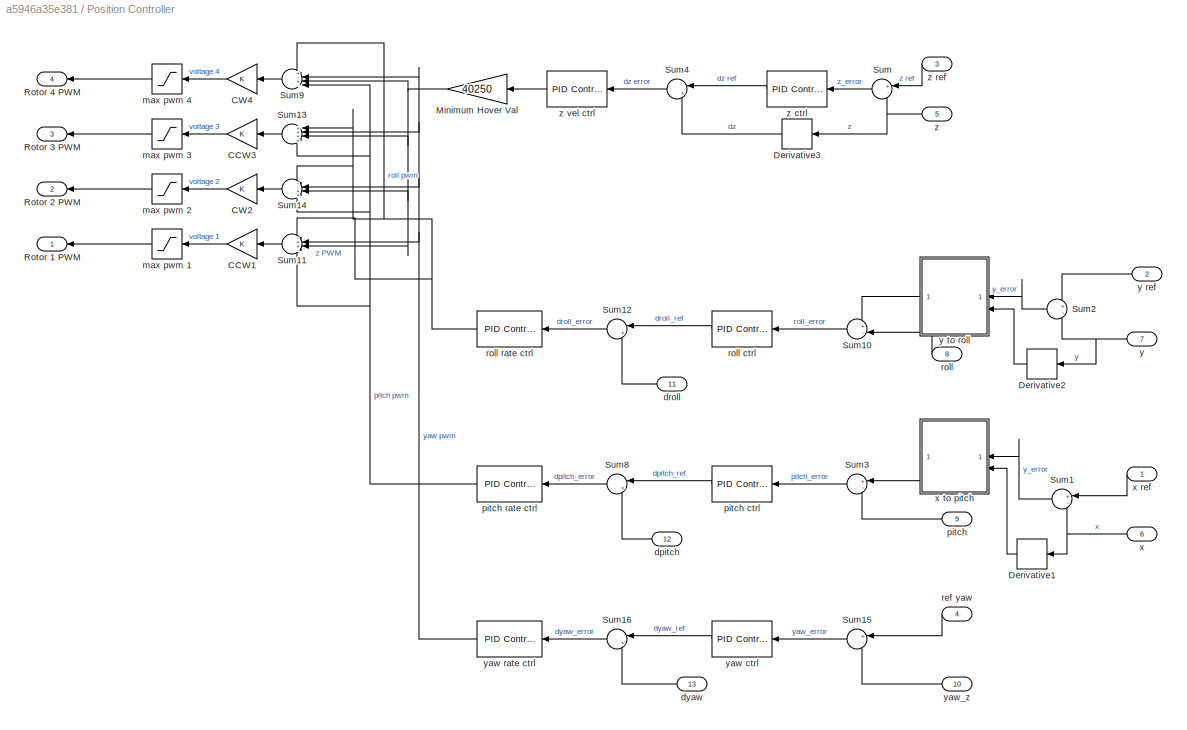
BLOCK [SubSystem] Position Controller
  SystemSampleTime = 0.1
BLOCK [Gain] Position Controller/CCW1
  NameLocation = top
BLOCK [Gain] Position Controller/CCW3
  NameLocation = top
BLOCK [Gain] Position Controller/CW2
  NameLocation = top
BLOCK [Gain] Position Controller/CW4
  NameLocation = top
BLOCK [Derivative] Position Controller/Derivative1
BLOCK [Derivative] Position Controller/Derivative2
BLOCK [Derivative] Position Controller/Derivative3
BLOCK [Gain] Position Controller/Minimum Hover Val
  Gain = 40250
BLOCK [Outport] Position Controller/Rotor 1 PWM
BLOCK [Outport] Position Controller/Rotor 2 PWM
  Port = 2
BLOCK [Outport] Position Controller/Rotor 3 PWM
  Port = 3
BLOCK [Outport] Position Controller/Rotor 4 PWM
  Port = 4
BLOCK [Sum] Position Controller/Sum
  Inputs = +-
  NameLocation = top
BLOCK [Sum] Position Controller/Sum1
  Inputs = +-
  NameLocation = top
BLOCK [Sum] Position Controller/Sum10
  Inputs = +-
  NameLocation = top
BLOCK [Sum] Position Controller/Sum11
  Inputs = -++-
  NameLocation = top
BLOCK [Sum] Position Controller/Sum12
  Inputs = |+-
  NameLocation = top
BLOCK [Sum] Position Controller/Sum13
  Inputs = ++++
  NameLocation = top
BLOCK [Sum] Position Controller/Sum14
  Inputs = --++
  NameLocation = top
BLOCK [Sum] Position Controller/Sum15
  Inputs = +-
  NameLocation = top
BLOCK [Sum] Position Controller/Sum16
  Inputs = |+-
  NameLocation = top
BLOCK [Sum] Position Controller/Sum2
  Inputs = +-
  NameLocation = top
BLOCK [Sum] Position Controller/Sum3
  Inputs = +-
  NameLocation = top
BLOCK [Sum] Position Controller/Sum4
  Inputs = |+-
  NameLocation = top
BLOCK [Sum] Position Controller/Sum8
  Inputs = |+-
  NameLocation = top
BLOCK [Sum] Position Controller/Sum9
  Inputs = +-+-
  NameLocation = top
BLOCK [Inport] Position Controller/dpitch
  Port = 12
BLOCK [Inport] Position Controller/droll
  Port = 11
BLOCK [Inport] Position Controller/dyaw
  Port = 13
BLOCK [Saturate] Position Controller/max pwm 1
  LowerLimit = -65535
  NameLocation = top
  UpperLimit = 65535
  ZeroCross = off
BLOCK [Saturate] Position Controller/max pwm 2
  LowerLimit = -65535
  NameLocation = top
  UpperLimit = 65535
  ZeroCross = off
BLOCK [Saturate] Position Controller/max pwm 3
  LowerLimit = -65535
  NameLocation = top
  UpperLimit = 65535
  ZeroCross = off
BLOCK [Saturate] Position Controller/max pwm 4
  LowerLimit = -65535
  NameLocation = top
  UpperLimit = 65535
  ZeroCross = off
BLOCK [Inport] Position Controller/pitch
  Port = 9
BLOCK [Reference] Position Controller/pitch ctrl  REF=slpidlib/PID Controller
  NameLocation = top
  SourceBlock = slpidlib/PID Controller
  SourceType = PID 1dof
BLOCK [Reference] Position Controller/pitch rate ctrl  REF=slpidlib/PID Controller
  NameLocation = top
  SourceBlock = slpidlib/PID Controller
  SourceType = PID 1dof
BLOCK [Inport] Position Controller/ref yaw
  Port = 4
BLOCK [Inport] Position Controller/roll
  Port = 8
BLOCK [Reference] Position Controller/roll ctrl  REF=slpidlib/PID Controller
  NameLocation = top
  SourceBlock = slpidlib/PID Controller
  SourceType = PID 1dof
BLOCK [Reference] Position Controller/roll rate ctrl  REF=slpidlib/PID Controller
  NameLocation = top
  SourceBlock = slpidlib/PID Controller
  SourceType = PID 1dof
BLOCK [Inport] Position Controller/x
  Port = 6
BLOCK [Inport] Position Controller/x ref
BLOCK [SubSystem] Position Controller/x to pitch
  NameLocation = top
BLOCK [Sum] Position Controller/x to pitch/Sum3
  Inputs = |+-
  NameLocation = top
BLOCK [Inport] Position Controller/x to pitch/dx
  Port = 2
BLOCK [Reference] Position Controller/x to pitch/dy error to pitch_reff  REF=slpidlib/PID Controller
  NameLocation = top
  SourceBlock = slpidlib/PID Controller
  SourceType = PID 1dof
BLOCK [Saturate] Position Controller/x to pitch/pitch limit 30
  LowerLimit = -45*pi/180
  NameLocation = top
  UpperLimit = 45*pi/180
  ZeroCross = off
BLOCK [Outport] Position Controller/x to pitch/pitch ref
BLOCK [Inport] Position Controller/x to pitch/x error
BLOCK [Reference] Position Controller/x to pitch/x to dx  REF=slpidlib/PID Controller
  NameLocation = top
  SourceBlock = slpidlib/PID Controller
  SourceType = PID 1dof
BLOCK [Inport] Position Controller/y
  Port = 7
BLOCK [Inport] Position Controller/y ref
  Port = 2
BLOCK [SubSystem] Position Controller/y to roll
  NameLocation = top
BLOCK [Gain] Position Controller/y to roll/Gain
  Gain = -1
  NameLocation = top
BLOCK [Reference] Position Controller/y to roll/Position ctrl  REF=slpidlib/PID Controller
  NameLocation = top
  SourceBlock = slpidlib/PID Controller
  SourceType = PID 1dof
BLOCK [Sum] Position Controller/y to roll/Sum3
  Inputs = |+-
  NameLocation = top
BLOCK [Reference] Position Controller/y to roll/Velocity ctrl  REF=slpidlib/PID Controller
  NameLocation = top
  SourceBlock = slpidlib/PID Controller
  SourceType = PID 1dof
BLOCK [Inport] Position Controller/y to roll/dy
  Port = 2
BLOCK [Saturate] Position Controller/y to roll/roll limit 1
  LowerLimit = -45*pi/180
  NameLocation = top
  UpperLimit = 45*pi/180
  ZeroCross = off
BLOCK [Outport] Position Controller/y to roll/roll ref
BLOCK [Inport] Position Controller/y to roll/y error
BLOCK [Reference] Position Controller/yaw ctrl  REF=slpidlib/PID Controller
  NameLocation = top
  SourceBlock = slpidlib/PID Controller
  SourceType = PID 1dof
BLOCK [Reference] Position Controller/yaw rate ctrl  REF=slpidlib/PID Controller
  NameLocation = top
  SourceBlock = slpidlib/PID Controller
  SourceType = PID 1dof
BLOCK [Inport] Position Controller/yaw_z
  Port = 10
BLOCK [Inport] Position Controller/z
  Port = 5
BLOCK [Reference] Position Controller/z ctrl  REF=slpidlib/PID Controller
  NameLocation = top
  SourceBlock = slpidlib/PID Controller
  SourceType = PID 1dof
BLOCK [Inport] Position Controller/z ref
  Port = 3
BLOCK [Reference] Position Controller/z vel ctrl  REF=slpidlib/PID Controller
  NameLocation = top
  SourceBlock = slpidlib/PID Controller
  SourceType = PID 1dof
BLOCK [Reference] Solver Configuration1  REF=nesl_utility/Solver
Configuration
  SourceBlock = nesl_utility/Solver\nConfiguration
  SourceType = Solver\nConfiguration
BLOCK [Reference] World Frame  REF=sm_lib/Frames and
Transforms/World Frame
  SourceBlock = sm_lib/Frames and\nTransforms/World Frame
  SourceType = World Frame
BLOCK [SubSystem] quadrotor model old
  Commented = on
BLOCK [SubSystem] quadrotor model old/Body
BLOCK [PMIOPort] quadrotor model old/Body/Conn1
  NameLocation = right
  Side = Right
BLOCK [Reference] quadrotor model old/Body/Rigid Transform4  REF=sm_lib/Frames and
Transforms/Rigid
Transform
  SourceBlock = sm_lib/Frames and\nTransforms/Rigid\nTransform
  SourceType = Rigid\nTransform
BLOCK [Reference] quadrotor model old/Body/Rigid Transform5  REF=sm_lib/Frames and
Transforms/Rigid
Transform
  SourceBlock = sm_lib/Frames and\nTransforms/Rigid\nTransform
  SourceType = Rigid\nTransform
BLOCK [Reference] quadrotor model old/Body/body  REF=sm_lib/Body Elements/Brick Solid
  NameLocation = top
  SourceBlock = sm_lib/Body Elements/Brick Solid
  SourceType = Brick Solid
BLOCK [Reference] quadrotor model old/Body/body1  REF=sm_lib/Body Elements/Brick Solid
  NameLocation = top
  SourceBlock = sm_lib/Body Elements/Brick Solid
  SourceType = Brick Solid
BLOCK [Reference] quadrotor model old/Body/body2  REF=sm_lib/Body Elements/Brick Solid
  NameLocation = top
  SourceBlock = sm_lib/Body Elements/Brick Solid
  SourceType = Brick Solid
BLOCK [Reference] quadrotor model old/Drone Body Frame  REF=sm_lib/Frames and
Transforms/Reference
Frame
  NameLocation = left
  SourceBlock = sm_lib/Frames and\nTransforms/Reference\nFrame
  SourceType = Reference\nFrame
BLOCK [SubSystem] quadrotor model old/Rotor1
  NameLocation = top
BLOCK [Inport] quadrotor model old/Rotor1 PWM
BLOCK [Reference] quadrotor model old/Rotor1/  Motor Thrust 1  REF=sm_lib/Forces and
Torques/External Force
and Torque
  NameLocation = top
  SourceBlock = sm_lib/Forces and\nTorques/External Force\nand Torque
  SourceType = External Force\nand Torque
BLOCK [PMIOPort] quadrotor model old/Rotor1/Body
  NameLocation = right
  Side = Right
BLOCK [Reference] quadrotor model old/Rotor1/PS Terminator  REF=fl_lib/Physical Signals/Sinks/PS Terminator
  SourceBlock = fl_lib/Physical Signals/Sinks/PS Terminator
  SourceType = PS Terminator
BLOCK [PMIOPort] quadrotor model old/Rotor1/Revolute Joint
  Port = 2
  Side = Left
BLOCK [Reference] quadrotor model old/Rotor1/Revolute Joint1  REF=sm_lib/Joints/Revolute Joint
  SourceBlock = sm_lib/Joints/Revolute Joint
  SourceType = Revolute Joint
BLOCK [Reference] quadrotor model old/Rotor1/Rigid Transform  REF=sm_lib/Frames and
Transforms/Rigid
Transform
  SourceBlock = sm_lib/Frames and\nTransforms/Rigid\nTransform
  SourceType = Rigid\nTransform
BLOCK [Reference] quadrotor model old/Rotor1/Rigid Transform10  REF=sm_lib/Frames and
Transforms/Rigid
Transform
  SourceBlock = sm_lib/Frames and\nTransforms/Rigid\nTransform
  SourceType = Rigid\nTransform
BLOCK [Reference] quadrotor model old/Rotor1/Rigid Transform6  REF=sm_lib/Frames and
Transforms/Rigid
Transform
  SourceBlock = sm_lib/Frames and\nTransforms/Rigid\nTransform
  SourceType = Rigid\nTransform
BLOCK [PMIOPort] quadrotor model old/Rotor1/Thrust
  Port = 3
  Side = Left
BLOCK [Reference] quadrotor model old/Rotor1/motor 1  REF=sm_lib/Body Elements/Cylindrical Solid
  NameLocation = top
  SourceBlock = sm_lib/Body Elements/Cylindrical Solid
  SourceType = Cylindrical Solid
BLOCK [Reference] quadrotor model old/Rotor1/rotor1  REF=sm_lib/Body Elements/Brick Solid
  NameLocation = top
  SourceBlock = sm_lib/Body Elements/Brick Solid
  SourceType = Brick Solid
BLOCK [SubSystem] quadrotor model old/Rotor2
BLOCK [Inport] quadrotor model old/Rotor2 PWM
  Port = 2
BLOCK [Reference] quadrotor model old/Rotor2/  Motor Thrust 2  REF=sm_lib/Forces and
Torques/External Force
and Torque
  NameLocation = top
  SourceBlock = sm_lib/Forces and\nTorques/External Force\nand Torque
  SourceType = External Force\nand Torque
BLOCK [PMIOPort] quadrotor model old/Rotor2/Body
  NameLocation = right
  Side = Left
BLOCK [PMIOPort] quadrotor model old/Rotor2/Revolute Joint
  Port = 2
  Side = Right
BLOCK [Reference] quadrotor model old/Rotor2/Revolute Joint2  REF=sm_lib/Joints/Revolute Joint
  SourceBlock = sm_lib/Joints/Revolute Joint
  SourceType = Revolute Joint
BLOCK [Reference] quadrotor model old/Rotor2/Rigid Transform1  REF=sm_lib/Frames and
Transforms/Rigid
Transform
  SourceBlock = sm_lib/Frames and\nTransforms/Rigid\nTransform
  SourceType = Rigid\nTransform
BLOCK [Reference] quadrotor model old/Rotor2/Rigid Transform11  REF=sm_lib/Frames and
Transforms/Rigid
Transform
  SourceBlock = sm_lib/Frames and\nTransforms/Rigid\nTransform
  SourceType = Rigid\nTransform
BLOCK [Reference] quadrotor model old/Rotor2/Rigid Transform7  REF=sm_lib/Frames and
Transforms/Rigid
Transform
  SourceBlock = sm_lib/Frames and\nTransforms/Rigid\nTransform
  SourceType = Rigid\nTransform
BLOCK [PMIOPort] quadrotor model old/Rotor2/Thrust
  Port = 3
  Side = Right
BLOCK [Reference] quadrotor model old/Rotor2/motor 2  REF=sm_lib/Body Elements/Cylindrical Solid
  NameLocation = top
  SourceBlock = sm_lib/Body Elements/Cylindrical Solid
  SourceType = Cylindrical Solid
BLOCK [Reference] quadrotor model old/Rotor2/rotor2  REF=sm_lib/Body Elements/Brick Solid
  NameLocation = top
  SourceBlock = sm_lib/Body Elements/Brick Solid
  SourceType = Brick Solid
BLOCK [SubSystem] quadrotor model old/Rotor3
BLOCK [Inport] quadrotor model old/Rotor3 PWM
  Port = 3
BLOCK [Reference] quadrotor model old/Rotor3/  Motor Thrust 3  REF=sm_lib/Forces and
Torques/External Force
and Torque
  NameLocation = top
  SourceBlock = sm_lib/Forces and\nTorques/External Force\nand Torque
  SourceType = External Force\nand Torque
BLOCK [PMIOPort] quadrotor model old/Rotor3/Body
  Side = Left
BLOCK [PMIOPort] quadrotor model old/Rotor3/Revolute
  Port = 2
  Side = Right
BLOCK [Reference] quadrotor model old/Rotor3/Revolute Joint3  REF=sm_lib/Joints/Revolute Joint
  SourceBlock = sm_lib/Joints/Revolute Joint
  SourceType = Revolute Joint
BLOCK [Reference] quadrotor model old/Rotor3/Rigid Transform12  REF=sm_lib/Frames and
Transforms/Rigid
Transform
  SourceBlock = sm_lib/Frames and\nTransforms/Rigid\nTransform
  SourceType = Rigid\nTransform
BLOCK [Reference] quadrotor model old/Rotor3/Rigid Transform2  REF=sm_lib/Frames and
Transforms/Rigid
Transform
  SourceBlock = sm_lib/Frames and\nTransforms/Rigid\nTransform
  SourceType = Rigid\nTransform
BLOCK [Reference] quadrotor model old/Rotor3/Rigid Transform8  REF=sm_lib/Frames and
Transforms/Rigid
Transform
  SourceBlock = sm_lib/Frames and\nTransforms/Rigid\nTransform
  SourceType = Rigid\nTransform
BLOCK [PMIOPort] quadrotor model old/Rotor3/Thrust
  Port = 3
  Side = Right
BLOCK [Reference] quadrotor model old/Rotor3/motor 3  REF=sm_lib/Body Elements/Cylindrical Solid
  NameLocation = top
  SourceBlock = sm_lib/Body Elements/Cylindrical Solid
  SourceType = Cylindrical Solid
BLOCK [Reference] quadrotor model old/Rotor3/rotor3  REF=sm_lib/Body Elements/Brick Solid
  NameLocation = top
  SourceBlock = sm_lib/Body Elements/Brick Solid
  SourceType = Brick Solid
BLOCK [SubSystem] quadrotor model old/Rotor4
BLOCK [Inport] quadrotor model old/Rotor4 PWM
  Port = 4
BLOCK [Reference] quadrotor model old/Rotor4/  Motor Thrust 4  REF=sm_lib/Forces and
Torques/External Force
and Torque
  SourceBlock = sm_lib/Forces and\nTorques/External Force\nand Torque
  SourceType = External Force\nand Torque
BLOCK [PMIOPort] quadrotor model old/Rotor4/Body
  NameLocation = right
  Port = 3
  Side = Left
BLOCK [PMIOPort] quadrotor model old/Rotor4/Revolute Joint
  Side = Right
BLOCK [Reference] quadrotor model old/Rotor4/Revolute Joint4  REF=sm_lib/Joints/Revolute Joint
  SourceBlock = sm_lib/Joints/Revolute Joint
  SourceType = Revolute Joint
BLOCK [Reference] quadrotor model old/Rotor4/Rigid Transform13  REF=sm_lib/Frames and
Transforms/Rigid
Transform
  SourceBlock = sm_lib/Frames and\nTransforms/Rigid\nTransform
  SourceType = Rigid\nTransform
BLOCK [Reference] quadrotor model old/Rotor4/Rigid Transform3  REF=sm_lib/Frames and
Transforms/Rigid
Transform
  SourceBlock = sm_lib/Frames and\nTransforms/Rigid\nTransform
  SourceType = Rigid\nTransform
BLOCK [Reference] quadrotor model old/Rotor4/Rigid Transform9  REF=sm_lib/Frames and
Transforms/Rigid
Transform
  SourceBlock = sm_lib/Frames and\nTransforms/Rigid\nTransform
  SourceType = Rigid\nTransform
BLOCK [PMIOPort] quadrotor model old/Rotor4/Thrust
  Port = 2
  Side = Right
BLOCK [Reference] quadrotor model old/Rotor4/motor 4  REF=sm_lib/Body Elements/Cylindrical Solid
  NameLocation = top
  SourceBlock = sm_lib/Body Elements/Cylindrical Solid
  SourceType = Cylindrical Solid
BLOCK [Reference] quadrotor model old/Rotor4/rotor4  REF=sm_lib/Body Elements/Brick Solid
  NameLocation = top
  SourceBlock = sm_lib/Body Elements/Brick Solid
  SourceType = Brick Solid
BLOCK [Scope] quadrotor model old/Thrust Scope
  Floating = off
  NumInputPorts = 4
  ScopeSpecificationString = Simulink.scopes.TimeScopeBlockCfg('CurrentConfiguration', extmgr.ConfigurationSet(extmgr.Configuration('Core','General UI',true),extmgr.Configuration('Core','Source UI',true),extmgr.Configuration('Sources','WiredSimulink',true,'DataLoggingVariableName','ScopeData2'),extmgr.Configuration('Visuals','Time Domain',true,'SerializedDisplays',{struct('MinYLimReal','-1.00000','MaxYLimReal','1.00000','YLab...<+3986ch>
BLOCK [SubSystem] quadrotor model old/Thrust and Roatation3
  NameLocation = top
BLOCK [Integrator] quadrotor model old/Thrust and Roatation3/Integrator2
  NameLocation = top
BLOCK [Inport] quadrotor model old/Thrust and Roatation3/PWM
BLOCK [PMIOPort] quadrotor model old/Thrust and Roatation3/Rotation
  Side = Right
BLOCK [Reference] quadrotor model old/Thrust and Roatation3/Simulink-PS Converter4  REF=nesl_utility/Simulink-PS
Converter
  NameLocation = top
  SourceBlock = nesl_utility/Simulink-PS\nConverter
  SourceType = Simulink-PS\nConverter
BLOCK [Reference] quadrotor model old/Thrust and Roatation3/Simulink-PS Converter5  REF=nesl_utility/Simulink-PS
Converter
  NameLocation = top
  SourceBlock = nesl_utility/Simulink-PS\nConverter
  SourceType = Simulink-PS\nConverter
BLOCK [PMIOPort] quadrotor model old/Thrust and Roatation3/Thrust
  Port = 2
  Side = Right
BLOCK [Fcn] quadrotor model old/Thrust and Roatation3/pwm to thrust2
  Expr = -(2.130295*10^(-11)*u^2 + 1.032633*10^(-6)*u + 5.484560*10^(-4))
  NameLocation = top
BLOCK [Fcn] quadrotor model old/Thrust and Roatation3/pwm to w2
  Expr = (0.03950236*u + 420.9420)*(u>1000)
  NameLocation = top
BLOCK [SubSystem] quadrotor model old/Thrust and Rotation1
  NameLocation = top
BLOCK [Integrator] quadrotor model old/Thrust and Rotation1/Integrator
  NameLocation = top
BLOCK [Inport] quadrotor model old/Thrust and Rotation1/PWM
BLOCK [PMIOPort] quadrotor model old/Thrust and Rotation1/Rotation
  Side = Right
BLOCK [Reference] quadrotor model old/Thrust and Rotation1/Simulink-PS Converter1  REF=nesl_utility/Simulink-PS
Converter
  NameLocation = top
  SourceBlock = nesl_utility/Simulink-PS\nConverter
  SourceType = Simulink-PS\nConverter
BLOCK [Reference] quadrotor model old/Thrust and Rotation1/Simulink-PS Converter9  REF=nesl_utility/Simulink-PS
Converter
  NameLocation = top
  SourceBlock = nesl_utility/Simulink-PS\nConverter
  SourceType = Simulink-PS\nConverter
BLOCK [PMIOPort] quadrotor model old/Thrust and Rotation1/Thrust
  Port = 2
  Side = Right
BLOCK [Fcn] quadrotor model old/Thrust and Rotation1/pwm to thrust
  Expr = -(2.130295*10^(-11)*u^2 + 1.032633*10^(-6)*u + 5.484560*10^(-4))
  NameLocation = top
BLOCK [Fcn] quadrotor model old/Thrust and Rotation1/pwm to w
  Expr = (0.03950236*u + 420.9420)*(u>1000)
  NameLocation = top
BLOCK [SubSystem] quadrotor model old/Thrust and Rotation2
  NameLocation = top
BLOCK [Gain] quadrotor model old/Thrust and Rotation2/Gain2
  Gain = -1
BLOCK [Integrator] quadrotor model old/Thrust and Rotation2/Integrator1
  NameLocation = top
BLOCK [Inport] quadrotor model old/Thrust and Rotation2/PWM
BLOCK [PMIOPort] quadrotor model old/Thrust and Rotation2/Rotation
  Side = Right
BLOCK [Reference] quadrotor model old/Thrust and Rotation2/Simulink-PS Converter2  REF=nesl_utility/Simulink-PS
Converter
  NameLocation = top
  SourceBlock = nesl_utility/Simulink-PS\nConverter
  SourceType = Simulink-PS\nConverter
BLOCK [Reference] quadrotor model old/Thrust and Rotation2/Simulink-PS Converter3  REF=nesl_utility/Simulink-PS
Converter
  NameLocation = top
  SourceBlock = nesl_utility/Simulink-PS\nConverter
  SourceType = Simulink-PS\nConverter
BLOCK [PMIOPort] quadrotor model old/Thrust and Rotation2/Thrust
  Port = 2
  Side = Right
BLOCK [Fcn] quadrotor model old/Thrust and Rotation2/pwm to thrust1
  Expr = -(2.130295*10^(-11)*u^2 + 1.032633*10^(-6)*u + 5.484560*10^(-4))
  NameLocation = top
BLOCK [Fcn] quadrotor model old/Thrust and Rotation2/pwm to w1
  Expr = (0.03950236*u + 420.9420)*(u>1000)
  NameLocation = top
BLOCK [SubSystem] quadrotor model old/Thrust and Rotation4
  NameLocation = top
BLOCK [Gain] quadrotor model old/Thrust and Rotation4/Gain4
  Gain = -1
BLOCK [Integrator] quadrotor model old/Thrust and Rotation4/Integrator3
  NameLocation = top
BLOCK [Inport] quadrotor model old/Thrust and Rotation4/PWM
BLOCK [PMIOPort] quadrotor model old/Thrust and Rotation4/Rotation
  Side = Right
BLOCK [Reference] quadrotor model old/Thrust and Rotation4/Simulink-PS Converter6  REF=nesl_utility/Simulink-PS
Converter
  NameLocation = top
  SourceBlock = nesl_utility/Simulink-PS\nConverter
  SourceType = Simulink-PS\nConverter
BLOCK [Reference] quadrotor model old/Thrust and Rotation4/Simulink-PS Converter7  REF=nesl_utility/Simulink-PS
Converter
  NameLocation = top
  SourceBlock = nesl_utility/Simulink-PS\nConverter
  SourceType = Simulink-PS\nConverter
BLOCK [PMIOPort] quadrotor model old/Thrust and Rotation4/Thrust
  Port = 2
  Side = Right
BLOCK [Fcn] quadrotor model old/Thrust and Rotation4/pwm to thrust3
  Expr = -(2.130295*10^(-11)*u^2 + 1.032633*10^(-6)*u + 5.484560*10^(-4))
  NameLocation = top
BLOCK [Fcn] quadrotor model old/Thrust and Rotation4/pwm to w3
  Expr = (0.03950236*u + 420.9420)*(u>1000)
  NameLocation = top
BLOCK [PMIOPort] quadrotor model old/body_ref
  NameLocation = top
  Side = Right
LINE Crazyflie Motors/PWM to Thrust and Rotation 1 CCW/Angular Velocity to Angle:1 -> Crazyflie Motors/PWM to Thrust and Rotation 1 CCW/Physical signal filtered:1
LINE Crazyflie Motors/PWM to Thrust and Rotation 1 CCW/Discrete Transfer Fcn:1 -> Crazyflie Motors/PWM to Thrust and Rotation 1 CCW/Scope:2
NET Crazyflie Motors/PWM to Thrust and Rotation 1 CCW/PWM to Thrust:1 -> Crazyflie Motors/PWM to Thrust and Rotation 1 CCW/Physical signal:1, Crazyflie Motors/PWM to Thrust and Rotation 1 CCW/Scope:1
LINE Crazyflie Motors/PWM to Thrust and Rotation 1 CCW/PWM to rotorspeed:1 -> Crazyflie Motors/PWM to Thrust and Rotation 1 CCW/Angular Velocity to Angle:1
NET Crazyflie Motors/PWM to Thrust and Rotation 1 CCW/Rotor PWM CCW:1 -> Crazyflie Motors/PWM to Thrust and Rotation 1 CCW/Discrete Transfer Fcn:1, Crazyflie Motors/PWM to Thrust and Rotation 1 CCW/PWM to Thrust:1, Crazyflie Motors/PWM to Thrust and Rotation 1 CCW/PWM to rotorspeed:1
LINE Crazyflie Motors/PWM to Thrust and Rotation 2 CW/Gain:1 -> Crazyflie Motors/PWM to Thrust and Rotation 2 CW/Simulink to Physical signal1:1
LINE Crazyflie Motors/PWM to Thrust and Rotation 2 CW/MATLAB Function:1 -> Crazyflie Motors/PWM to Thrust and Rotation 2 CW/Rotor Angular Velocity to Rotor Angle:1
LINE Crazyflie Motors/PWM to Thrust and Rotation 2 CW/PWM to Thrust:1 -> Crazyflie Motors/PWM to Thrust and Rotation 2 CW/Simulink to Physical signal:1
LINE Crazyflie Motors/PWM to Thrust and Rotation 2 CW/Rotor Angular Velocity to Rotor Angle:1 -> Crazyflie Motors/PWM to Thrust and Rotation 2 CW/Gain:1
NET Crazyflie Motors/PWM to Thrust and Rotation 2 CW/Rotor PWM CW:1 -> Crazyflie Motors/PWM to Thrust and Rotation 2 CW/MATLAB Function:1, Crazyflie Motors/PWM to Thrust and Rotation 2 CW/PWM to Thrust:1
LINE Crazyflie Motors/PWM to Thrust and Rotation 3 CCW/MATLAB Function:1 -> Crazyflie Motors/PWM to Thrust and Rotation 3 CCW/Rotor Angular Velocity to Rotor Angle:1
LINE Crazyflie Motors/PWM to Thrust and Rotation 3 CCW/PWM to Thrust:1 -> Crazyflie Motors/PWM to Thrust and Rotation 3 CCW/Simulink to Physical signal:1
LINE Crazyflie Motors/PWM to Thrust and Rotation 3 CCW/Rotor Angular Velocity to Rotor Angle:1 -> Crazyflie Motors/PWM to Thrust and Rotation 3 CCW/Simulink to Physical signal1:1
NET Crazyflie Motors/PWM to Thrust and Rotation 3 CCW/Rotor PWM CCW:1 -> Crazyflie Motors/PWM to Thrust and Rotation 3 CCW/MATLAB Function:1, Crazyflie Motors/PWM to Thrust and Rotation 3 CCW/PWM to Thrust:1
LINE Crazyflie Motors/PWM to Thrust and Rotation 4 CW/Gain:1 -> Crazyflie Motors/PWM to Thrust and Rotation 4 CW/Simulink to Physical signal1:1
LINE Crazyflie Motors/PWM to Thrust and Rotation 4 CW/MATLAB Function:1 -> Crazyflie Motors/PWM to Thrust and Rotation 4 CW/Rotor Angular Velocity to Rotor Angle:1
NET Crazyflie Motors/PWM to Thrust and Rotation 4 CW/PWM to Thrust:1 -> Crazyflie Motors/PWM to Thrust and Rotation 4 CW/Scope:1, Crazyflie Motors/PWM to Thrust and Rotation 4 CW/Simulink to Physical signal:1
LINE Crazyflie Motors/PWM to Thrust and Rotation 4 CW/Rotor Angular Velocity to Rotor Angle:1 -> Crazyflie Motors/PWM to Thrust and Rotation 4 CW/Gain:1
NET Crazyflie Motors/PWM to Thrust and Rotation 4 CW/Rotor PWM CW:1 -> Crazyflie Motors/PWM to Thrust and Rotation 4 CW/MATLAB Function:1, Crazyflie Motors/PWM to Thrust and Rotation 4 CW/PWM to Thrust:1
LINE Crazyflie Motors/Rotor1 PWM:1 -> Crazyflie Motors/PWM to Thrust and Rotation 1 CCW:1
LINE Crazyflie Motors/Rotor2 PWM:1 -> Crazyflie Motors/PWM to Thrust and Rotation 2 CW:1
LINE Crazyflie Motors/Rotor3 PWM:1 -> Crazyflie Motors/PWM to Thrust and Rotation 3 CCW:1
LINE Crazyflie Motors/Rotor4 PWM:1 -> Crazyflie Motors/PWM to Thrust and Rotation 4 CW:1
LINE Crazyflie Motors/Thrust and Rotation3 old/Gain4:1 -> Crazyflie Motors/Thrust and Rotation3 old/Simulink-PS Converter7:1
LINE Crazyflie Motors/Thrust and Rotation3 old/Integrator3:1 -> Crazyflie Motors/Thrust and Rotation3 old/Gain4:1
NET Crazyflie Motors/Thrust and Rotation3 old/PWM:1 -> Crazyflie Motors/Thrust and Rotation3 old/pwm to thrust3:1, Crazyflie Motors/Thrust and Rotation3 old/pwm to w3:1
LINE Crazyflie Motors/Thrust and Rotation3 old/pwm to thrust3:1 -> Crazyflie Motors/Thrust and Rotation3 old/Simulink-PS Converter6:1
LINE Crazyflie Motors/Thrust and Rotation3 old/pwm to w3:1 -> Crazyflie Motors/Thrust and Rotation3 old/Integrator3:1
LINE Demux1:1 -> quadrotor model old:1
LINE Demux1:2 -> quadrotor model old:2
LINE Demux1:3 -> quadrotor model old:3
LINE Demux1:4 -> quadrotor model old:4
LINE Demux2:1 -> Position Controller:5
LINE Demux2:2 -> Position Controller:6
LINE Demux2:3 -> Position Controller:7
LINE Demux2:4 -> Position Controller:8
LINE Demux2:5 -> Position Controller:9
LINE Demux2:6 -> Position Controller:10
LINE Demux2:7 -> Position Controller:11
LINE Demux2:8 -> Position Controller:12
LINE Demux2:9 -> Position Controller:13
LINE Dynamics & World/Roll Pitch Yaw Joint/PS-Simulink Converter1:1 -> Dynamics & World/Roll Pitch Yaw Joint/yaw_z dyaw1:1
LINE Dynamics & World/Roll Pitch Yaw Joint/PS-Simulink Converter2:1 -> Dynamics & World/Roll Pitch Yaw Joint/roll_y droll:1
LINE Dynamics & World/Roll Pitch Yaw Joint/PS-Simulink Converter3:1 -> Dynamics & World/Roll Pitch Yaw Joint/roll_y droll1:1
LINE Dynamics & World/Roll Pitch Yaw Joint/PS-Simulink Converter4:1 -> Dynamics & World/Roll Pitch Yaw Joint/pitch_x dpitch:1
LINE Dynamics & World/Roll Pitch Yaw Joint/PS-Simulink Converter5:1 -> Dynamics & World/Roll Pitch Yaw Joint/pitch_x dpitch1:1
LINE Dynamics & World/Roll Pitch Yaw Joint/PS-Simulink Converter:1 -> Dynamics & World/Roll Pitch Yaw Joint/yaw_z dyaw:1
LINE Dynamics & World/Roll Pitch Yaw Joint:1 -> Dynamics & World/pitch_x dpitch:1
LINE Dynamics & World/Roll Pitch Yaw Joint:2 -> Dynamics & World/roll_y droll:1
LINE Dynamics & World/Roll Pitch Yaw Joint:3 -> Dynamics & World/yaw_z dyaw:1
LINE Dynamics & World/Roll Pitch Yaw Joint:4 -> Dynamics & World/pitch_x dpitch1:1
LINE Dynamics & World/Roll Pitch Yaw Joint:5 -> Dynamics & World/roll_y droll1:1
LINE Dynamics & World/Roll Pitch Yaw Joint:6 -> Dynamics & World/yaw_z dyaw1:1
LINE Dynamics & World/x,y,z joint/PS-Simulink Converter6:1 -> Dynamics & World/x,y,z joint/z:1
LINE Dynamics & World/x,y,z joint/PS-Simulink Converter7:1 -> Dynamics & World/x,y,z joint/x:1
LINE Dynamics & World/x,y,z joint/PS-Simulink Converter8:1 -> Dynamics & World/x,y,z joint/y:1
LINE Dynamics & World/x,y,z joint:1 -> Dynamics & World/z:1
LINE Dynamics & World/x,y,z joint:2 -> Dynamics & World/x:1
LINE Dynamics & World/x,y,z joint:3 -> Dynamics & World/y:1
LINE Dynamics & World1/Roll Pitch Yaw Joint/PS-Simulink Converter1:1 -> Dynamics & World1/Roll Pitch Yaw Joint/yaw_z dyaw1:1
LINE Dynamics & World1/Roll Pitch Yaw Joint/PS-Simulink Converter2:1 -> Dynamics & World1/Roll Pitch Yaw Joint/roll_y droll:1
LINE Dynamics & World1/Roll Pitch Yaw Joint/PS-Simulink Converter3:1 -> Dynamics & World1/Roll Pitch Yaw Joint/roll_y droll1:1
LINE Dynamics & World1/Roll Pitch Yaw Joint/PS-Simulink Converter4:1 -> Dynamics & World1/Roll Pitch Yaw Joint/pitch_x dpitch:1
LINE Dynamics & World1/Roll Pitch Yaw Joint/PS-Simulink Converter5:1 -> Dynamics & World1/Roll Pitch Yaw Joint/pitch_x dpitch1:1
LINE Dynamics & World1/Roll Pitch Yaw Joint/PS-Simulink Converter:1 -> Dynamics & World1/Roll Pitch Yaw Joint/yaw_z dyaw:1
LINE Dynamics & World1/Roll Pitch Yaw Joint:1 -> Dynamics & World1/pitch_x dpitch:1
LINE Dynamics & World1/Roll Pitch Yaw Joint:2 -> Dynamics & World1/roll_y droll:1
LINE Dynamics & World1/Roll Pitch Yaw Joint:3 -> Dynamics & World1/yaw_z dyaw:1
LINE Dynamics & World1/Roll Pitch Yaw Joint:4 -> Dynamics & World1/pitch_x dpitch1:1
LINE Dynamics & World1/Roll Pitch Yaw Joint:5 -> Dynamics & World1/roll_y droll1:1
LINE Dynamics & World1/Roll Pitch Yaw Joint:6 -> Dynamics & World1/yaw_z dyaw1:1
LINE Dynamics & World1/x,y,z joint/PS-Simulink Converter6:1 -> Dynamics & World1/x,y,z joint/z:1
LINE Dynamics & World1/x,y,z joint/PS-Simulink Converter7:1 -> Dynamics & World1/x,y,z joint/x:1
LINE Dynamics & World1/x,y,z joint/PS-Simulink Converter8:1 -> Dynamics & World1/x,y,z joint/y:1
LINE Dynamics & World1/x,y,z joint:1 -> Dynamics & World1/z:1
LINE Dynamics & World1/x,y,z joint:2 -> Dynamics & World1/x:1
LINE Dynamics & World1/x,y,z joint:3 -> Dynamics & World1/y:1
LINE Dynamics & World:1 -> Mux:1
LINE Dynamics & World:2 -> Mux:2
LINE Dynamics & World:3 -> Mux:3
LINE Dynamics & World:4 -> Mux:4
LINE Dynamics & World:5 -> Mux:5
LINE Dynamics & World:6 -> Mux:6
LINE Dynamics & World:7 -> Mux:7
LINE Dynamics & World:8 -> Mux:8
LINE Dynamics & World:9 -> Mux:9
LINE From Workspace1:1 -> Position Controller:2
LINE From Workspace2:1 -> Position Controller:3
LINE From Workspace:1 -> Position Controller:1
LINE Input Positions current:4 -> Position Controller:4
LINE Mux:1 -> Demux2:1
LINE Position Controller/CCW1:1 -> Position Controller/max pwm 1:1
LINE Position Controller/CCW3:1 -> Position Controller/max pwm 3:1
LINE Position Controller/CW2:1 -> Position Controller/max pwm 2:1
LINE Position Controller/CW4:1 -> Position Controller/max pwm 4:1
LINE Position Controller/Derivative1:1 -> Position Controller/x to pitch:2
LINE Position Controller/Derivative2:1 -> Position Controller/y to roll:2
LINE Position Controller/Derivative3:1 -> Position Controller/Sum4:2
NET Position Controller/Minimum Hover Val:1 -> Position Controller/Sum11:3, Position Controller/Sum13:3, Position Controller/Sum14:3, Position Controller/Sum9:3
LINE Position Controller/Sum10:1 -> Position Controller/roll ctrl:1
LINE Position Controller/Sum11:1 -> Position Controller/CCW1:1
LINE Position Controller/Sum12:1 -> Position Controller/roll rate ctrl:1
LINE Position Controller/Sum13:1 -> Position Controller/CCW3:1
LINE Position Controller/Sum14:1 -> Position Controller/CW2:1
LINE Position Controller/Sum15:1 -> Position Controller/yaw ctrl:1
LINE Position Controller/Sum16:1 -> Position Controller/yaw rate ctrl:1
LINE Position Controller/Sum1:1 -> Position Controller/x to pitch:1
LINE Position Controller/Sum2:1 -> Position Controller/y to roll:1
LINE Position Controller/Sum3:1 -> Position Controller/pitch ctrl:1
LINE Position Controller/Sum4:1 -> Position Controller/z vel ctrl:1
LINE Position Controller/Sum8:1 -> Position Controller/pitch rate ctrl:1
LINE Position Controller/Sum9:1 -> Position Controller/CW4:1
LINE Position Controller/Sum:1 -> Position Controller/z ctrl:1
LINE Position Controller/dpitch:1 -> Position Controller/Sum8:2
LINE Position Controller/droll:1 -> Position Controller/Sum12:2
LINE Position Controller/dyaw:1 -> Position Controller/Sum16:2
LINE Position Controller/max pwm 1:1 -> Position Controller/Rotor 1 PWM:1
LINE Position Controller/max pwm 2:1 -> Position Controller/Rotor 2 PWM:1
LINE Position Controller/max pwm 3:1 -> Position Controller/Rotor 3 PWM:1
LINE Position Controller/max pwm 4:1 -> Position Controller/Rotor 4 PWM:1
LINE Position Controller/pitch ctrl:1 -> Position Controller/Sum8:1
NET Position Controller/pitch rate ctrl:1 -> Position Controller/Sum11:4, Position Controller/Sum13:4, Position Controller/Sum14:4, Position Controller/Sum9:4
LINE Position Controller/pitch:1 -> Position Controller/Sum3:2
LINE Position Controller/ref yaw:1 -> Position Controller/Sum15:1
LINE Position Controller/roll ctrl:1 -> Position Controller/Sum12:1
NET Position Controller/roll rate ctrl:1 -> Position Controller/Sum11:1, Position Controller/Sum13:1, Position Controller/Sum14:1, Position Controller/Sum9:1
LINE Position Controller/roll:1 -> Position Controller/Sum10:2
LINE Position Controller/x ref:1 -> Position Controller/Sum1:1
LINE Position Controller/x to pitch/Sum3:1 -> Position Controller/x to pitch/dy error to pitch_reff:1
LINE Position Controller/x to pitch/dx:1 -> Position Controller/x to pitch/Sum3:2
LINE Position Controller/x to pitch/dy error to pitch_reff:1 -> Position Controller/x to pitch/pitch limit 30:1
LINE Position Controller/x to pitch/pitch limit 30:1 -> Position Controller/x to pitch/pitch ref:1
LINE Position Controller/x to pitch/x error:1 -> Position Controller/x to pitch/x to dx:1
LINE Position Controller/x to pitch/x to dx:1 -> Position Controller/x to pitch/Sum3:1
LINE Position Controller/x to pitch:1 -> Position Controller/Sum3:1
NET Position Controller/x:1 -> Position Controller/Derivative1:1, Position Controller/Sum1:2
LINE Position Controller/y ref:1 -> Position Controller/Sum2:1
LINE Position Controller/y to roll/Gain:1 -> Position Controller/y to roll/roll ref:1
LINE Position Controller/y to roll/Position ctrl:1 -> Position Controller/y to roll/Sum3:1
LINE Position Controller/y to roll/Sum3:1 -> Position Controller/y to roll/Velocity ctrl:1
LINE Position Controller/y to roll/Velocity ctrl:1 -> Position Controller/y to roll/roll limit 1:1
LINE Position Controller/y to roll/dy:1 -> Position Controller/y to roll/Sum3:2
LINE Position Controller/y to roll/roll limit 1:1 -> Position Controller/y to roll/Gain:1
LINE Position Controller/y to roll/y error:1 -> Position Controller/y to roll/Position ctrl:1
LINE Position Controller/y to roll:1 -> Position Controller/Sum10:1
NET Position Controller/y:1 -> Position Controller/Derivative2:1, Position Controller/Sum2:2
LINE Position Controller/yaw ctrl:1 -> Position Controller/Sum16:1
NET Position Controller/yaw rate ctrl:1 -> Position Controller/Sum11:2, Position Controller/Sum13:2, Position Controller/Sum14:2, Position Controller/Sum9:2
LINE Position Controller/yaw_z:1 -> Position Controller/Sum15:2
LINE Position Controller/z ctrl:1 -> Position Controller/Sum4:1
LINE Position Controller/z ref:1 -> Position Controller/Sum:1
LINE Position Controller/z vel ctrl:1 -> Position Controller/Minimum Hover Val:1
NET Position Controller/z:1 -> Position Controller/Derivative3:1, Position Controller/Sum:2
LINE Position Controller:1 -> Crazyflie Motors:1
LINE Position Controller:2 -> Crazyflie Motors:2
LINE Position Controller:3 -> Crazyflie Motors:3
LINE Position Controller:4 -> Crazyflie Motors:4
LINE quadrotor model old/Rotor1 PWM:1 -> quadrotor model old/Thrust and Rotation1:1
LINE quadrotor model old/Rotor2 PWM:1 -> quadrotor model old/Thrust and Rotation2:1
LINE quadrotor model old/Rotor3 PWM:1 -> quadrotor model old/Thrust and Roatation3:1
LINE quadrotor model old/Rotor4 PWM:1 -> quadrotor model old/Thrust and Rotation4:1
LINE quadrotor model old/Thrust and Roatation3/Integrator2:1 -> quadrotor model old/Thrust and Roatation3/Simulink-PS Converter5:1
NET quadrotor model old/Thrust and Roatation3/PWM:1 -> quadrotor model old/Thrust and Roatation3/pwm to thrust2:1, quadrotor model old/Thrust and Roatation3/pwm to w2:1
LINE quadrotor model old/Thrust and Roatation3/pwm to thrust2:1 -> quadrotor model old/Thrust and Roatation3/Simulink-PS Converter4:1
LINE quadrotor model old/Thrust and Roatation3/pwm to w2:1 -> quadrotor model old/Thrust and Roatation3/Integrator2:1
LINE quadrotor model old/Thrust and Rotation1/Integrator:1 -> quadrotor model old/Thrust and Rotation1/Simulink-PS Converter9:1
NET quadrotor model old/Thrust and Rotation1/PWM:1 -> quadrotor model old/Thrust and Rotation1/pwm to thrust:1, quadrotor model old/Thrust and Rotation1/pwm to w:1
LINE quadrotor model old/Thrust and Rotation1/pwm to thrust:1 -> quadrotor model old/Thrust and Rotation1/Simulink-PS Converter1:1
LINE quadrotor model old/Thrust and Rotation1/pwm to w:1 -> quadrotor model old/Thrust and Rotation1/Integrator:1
LINE quadrotor model old/Thrust and Rotation2/Gain2:1 -> quadrotor model old/Thrust and Rotation2/Simulink-PS Converter3:1
LINE quadrotor model old/Thrust and Rotation2/Integrator1:1 -> quadrotor model old/Thrust and Rotation2/Gain2:1
NET quadrotor model old/Thrust and Rotation2/PWM:1 -> quadrotor model old/Thrust and Rotation2/pwm to thrust1:1, quadrotor model old/Thrust and Rotation2/pwm to w1:1
LINE quadrotor model old/Thrust and Rotation2/pwm to thrust1:1 -> quadrotor model old/Thrust and Rotation2/Simulink-PS Converter2:1
LINE quadrotor model old/Thrust and Rotation2/pwm to w1:1 -> quadrotor model old/Thrust and Rotation2/Integrator1:1
LINE quadrotor model old/Thrust and Rotation4/Gain4:1 -> quadrotor model old/Thrust and Rotation4/Simulink-PS Converter7:1
LINE quadrotor model old/Thrust and Rotation4/Integrator3:1 -> quadrotor model old/Thrust and Rotation4/Gain4:1
NET quadrotor model old/Thrust and Rotation4/PWM:1 -> quadrotor model old/Thrust and Rotation4/pwm to thrust3:1, quadrotor model old/Thrust and Rotation4/pwm to w3:1
LINE quadrotor model old/Thrust and Rotation4/pwm to thrust3:1 -> quadrotor model old/Thrust and Rotation4/Simulink-PS Converter6:1
LINE quadrotor model old/Thrust and Rotation4/pwm to w3:1 -> quadrotor model old/Thrust and Rotation4/Integrator3:1
PNET net1: Crazyflie Motors/Body/Conn1:RConn1 -- Crazyflie Motors/Body/Rigid Transform4:LConn1 -- Crazyflie Motors/Body/body1:RConn1 -- Crazyflie Motors/Body/body2:RConn1
PLINE Crazyflie Motors/Body/Rigid Transform4:RConn1 -- Crazyflie Motors/Body/Rigid Transform5:LConn1
PLINE Crazyflie Motors/Body/Rigid Transform5:RConn1 -- Crazyflie Motors/Body/body:RConn1
PNET net2: Crazyflie Motors/Body:RConn1 -- Crazyflie Motors/Drone Body Frame:RConn1 -- Crazyflie Motors/Rotor1:RConn1 -- Crazyflie Motors/Rotor2:LConn1 -- Crazyflie Motors/Rotor3:LConn1 -- Crazyflie Motors/Rotor4:LConn1 -- Crazyflie Motors/body_ref:RConn1
PLINE Crazyflie Motors/PWM to Thrust and Rotation 1 CCW/Physical signal filtered:RConn1 -- Crazyflie Motors/PWM to Thrust and Rotation 1 CCW/Rotation:RConn1
PLINE Crazyflie Motors/PWM to Thrust and Rotation 1 CCW/Physical signal:RConn1 -- Crazyflie Motors/PWM to Thrust and Rotation 1 CCW/Thrust:RConn1
PLINE Crazyflie Motors/PWM to Thrust and Rotation 1 CCW:RConn1 -- Crazyflie Motors/Rotor1:LConn1
PLINE Crazyflie Motors/PWM to Thrust and Rotation 1 CCW:RConn2 -- Crazyflie Motors/Rotor1:LConn2
PLINE Crazyflie Motors/PWM to Thrust and Rotation 2 CW/Rotation:RConn1 -- Crazyflie Motors/PWM to Thrust and Rotation 2 CW/Simulink to Physical signal1:RConn1
PLINE Crazyflie Motors/PWM to Thrust and Rotation 2 CW/Simulink to Physical signal:RConn1 -- Crazyflie Motors/PWM to Thrust and Rotation 2 CW/Thrust:RConn1
PLINE Crazyflie Motors/PWM to Thrust and Rotation 2 CW:RConn1 -- Crazyflie Motors/Rotor2:RConn1
PLINE Crazyflie Motors/PWM to Thrust and Rotation 2 CW:RConn2 -- Crazyflie Motors/Rotor2:RConn2
PLINE Crazyflie Motors/PWM to Thrust and Rotation 3 CCW/Rotation:RConn1 -- Crazyflie Motors/PWM to Thrust and Rotation 3 CCW/Simulink to Physical signal1:RConn1
PLINE Crazyflie Motors/PWM to Thrust and Rotation 3 CCW/Simulink to Physical signal:RConn1 -- Crazyflie Motors/PWM to Thrust and Rotation 3 CCW/Thrust:RConn1
PLINE Crazyflie Motors/PWM to Thrust and Rotation 3 CCW:RConn1 -- Crazyflie Motors/Rotor3:RConn1
PLINE Crazyflie Motors/PWM to Thrust and Rotation 3 CCW:RConn2 -- Crazyflie Motors/Rotor3:RConn2
PLINE Crazyflie Motors/PWM to Thrust and Rotation 4 CW/Rotation:RConn1 -- Crazyflie Motors/PWM to Thrust and Rotation 4 CW/Simulink to Physical signal1:RConn1
PLINE Crazyflie Motors/PWM to Thrust and Rotation 4 CW/Simulink to Physical signal:RConn1 -- Crazyflie Motors/PWM to Thrust and Rotation 4 CW/Thrust:RConn1
PLINE Crazyflie Motors/PWM to Thrust and Rotation 4 CW:RConn1 -- Crazyflie Motors/Rotor4:RConn1
PLINE Crazyflie Motors/PWM to Thrust and Rotation 4 CW:RConn2 -- Crazyflie Motors/Rotor4:RConn2
PLINE Crazyflie Motors/Rotor1/  Motor Thrust 1:LConn1 -- Crazyflie Motors/Rotor1/Thrust:RConn1
PNET net3: Crazyflie Motors/Rotor1/  Motor Thrust 1:RConn1 -- Crazyflie Motors/Rotor1/Apply Thrust & Rotation to rotor 1:LConn1 -- Crazyflie Motors/Rotor1/Move Rotor 1 to top of Motor 1:RConn1
PLINE Crazyflie Motors/Rotor1/Apply Thrust & Rotation to rotor 1:LConn2 -- Crazyflie Motors/Rotor1/Revolute Joint:RConn1
PLINE Crazyflie Motors/Rotor1/Apply Thrust & Rotation to rotor 1:RConn1 -- Crazyflie Motors/Rotor1/rotor1:RConn1
PLINE Crazyflie Motors/Rotor1/Apply Thrust & Rotation to rotor 1:RConn2 -- Crazyflie Motors/Rotor1/End Signals:LConn1
PLINE Crazyflie Motors/Rotor1/Body:RConn1 -- Crazyflie Motors/Rotor1/Move Rotor 1 & Motor 1 to corner:LConn1
PNET net4: Crazyflie Motors/Rotor1/Move Motor 1 to socket:LConn1 -- Crazyflie Motors/Rotor1/Move Rotor 1 & Motor 1 to corner:RConn1 -- Crazyflie Motors/Rotor1/Move Rotor 1 to top of Motor 1:LConn1
PLINE Crazyflie Motors/Rotor1/Move Motor 1 to socket:RConn1 -- Crazyflie Motors/Rotor1/motor 1:RConn1
PLINE Crazyflie Motors/Rotor1/Subsystem/  Apply Thrust:LConn1 -- Crazyflie Motors/Rotor1/Subsystem/Thrust:RConn1
PLINE Crazyflie Motors/Rotor1/Subsystem/  Apply Thrust:RConn1 -- Crazyflie Motors/Rotor1/Subsystem/Apply Rotation:LConn1
PLINE Crazyflie Motors/Rotor1/Subsystem/Apply Rotation:LConn2 -- Crazyflie Motors/Rotor1/Subsystem/Rotation:RConn1
PLINE Crazyflie Motors/Rotor1/Subsystem/Apply Rotation:RConn1 -- Crazyflie Motors/Rotor1/Subsystem/Rotor:RConn1
PLINE Crazyflie Motors/Rotor1/Subsystem/Apply Rotation:RConn2 -- Crazyflie Motors/Rotor1/Subsystem/End Signals:LConn1
PLINE Crazyflie Motors/Rotor2/  Motor Thrust 2:LConn1 -- Crazyflie Motors/Rotor2/Thrust:RConn1
PNET net5: Crazyflie Motors/Rotor2/  Motor Thrust 2:RConn1 -- Crazyflie Motors/Rotor2/Revolute Joint2:LConn1 -- Crazyflie Motors/Rotor2/Rigid Transform7:RConn1
PLINE Crazyflie Motors/Rotor2/Body:RConn1 -- Crazyflie Motors/Rotor2/Rigid Transform1:LConn1
PLINE Crazyflie Motors/Rotor2/Revolute Joint2:LConn2 -- Crazyflie Motors/Rotor2/Revolute Joint:RConn1
PLINE Crazyflie Motors/Rotor2/Revolute Joint2:RConn1 -- Crazyflie Motors/Rotor2/rotor2:RConn1
PNET net6: Crazyflie Motors/Rotor2/Rigid Transform11:LConn1 -- Crazyflie Motors/Rotor2/Rigid Transform1:RConn1 -- Crazyflie Motors/Rotor2/Rigid Transform7:LConn1
PLINE Crazyflie Motors/Rotor2/Rigid Transform11:RConn1 -- Crazyflie Motors/Rotor2/motor 2:RConn1
PLINE Crazyflie Motors/Rotor3/  Motor Thrust 3:LConn1 -- Crazyflie Motors/Rotor3/Thrust:RConn1
PNET net7: Crazyflie Motors/Rotor3/  Motor Thrust 3:RConn1 -- Crazyflie Motors/Rotor3/Revolute Joint3:LConn1 -- Crazyflie Motors/Rotor3/Rigid Transform8:RConn1
PLINE Crazyflie Motors/Rotor3/Body:RConn1 -- Crazyflie Motors/Rotor3/Rigid Transform2:LConn1
PLINE Crazyflie Motors/Rotor3/Revolute Joint3:LConn2 -- Crazyflie Motors/Rotor3/Revolute:RConn1
PLINE Crazyflie Motors/Rotor3/Revolute Joint3:RConn1 -- Crazyflie Motors/Rotor3/rotor3:RConn1
PNET net8: Crazyflie Motors/Rotor3/Rigid Transform12:LConn1 -- Crazyflie Motors/Rotor3/Rigid Transform2:RConn1 -- Crazyflie Motors/Rotor3/Rigid Transform8:LConn1
PLINE Crazyflie Motors/Rotor3/Rigid Transform12:RConn1 -- Crazyflie Motors/Rotor3/motor 3:RConn1
PLINE Crazyflie Motors/Rotor4/  Motor Thrust 4:LConn1 -- Crazyflie Motors/Rotor4/Thrust:RConn1
PNET net9: Crazyflie Motors/Rotor4/  Motor Thrust 4:RConn1 -- Crazyflie Motors/Rotor4/Revolute Joint4:LConn1 -- Crazyflie Motors/Rotor4/Rigid Transform9:RConn1
PLINE Crazyflie Motors/Rotor4/Body:RConn1 -- Crazyflie Motors/Rotor4/Rigid Transform3:LConn1
PLINE Crazyflie Motors/Rotor4/Revolute Joint4:LConn2 -- Crazyflie Motors/Rotor4/Revolute Joint:RConn1
PLINE Crazyflie Motors/Rotor4/Revolute Joint4:RConn1 -- Crazyflie Motors/Rotor4/rotor4:RConn1
PNET net10: Crazyflie Motors/Rotor4/Rigid Transform13:LConn1 -- Crazyflie Motors/Rotor4/Rigid Transform3:RConn1 -- Crazyflie Motors/Rotor4/Rigid Transform9:LConn1
PLINE Crazyflie Motors/Rotor4/Rigid Transform13:RConn1 -- Crazyflie Motors/Rotor4/motor 4:RConn1
PLINE Crazyflie Motors/Thrust and Rotation3 old/Rotation:RConn1 -- Crazyflie Motors/Thrust and Rotation3 old/Simulink-PS Converter7:RConn1
PLINE Crazyflie Motors/Thrust and Rotation3 old/Simulink-PS Converter6:RConn1 -- Crazyflie Motors/Thrust and Rotation3 old/Thrust:RConn1
PNET net11: Crazyflie Motors:RConn1 -- Drone Body Frame:RConn1 -- Dynamics & World:RConn1
PLINE Dynamics & World/Drone Reference Frame z-down,  +/Conn1:RConn1 -- Dynamics & World/Drone Reference Frame z-down,  +/z-down:RConn1
PLINE Dynamics & World/Drone Reference Frame z-down,  +/Conn2:RConn1 -- Dynamics & World/Drone Reference Frame z-down,  +/y -90:LConn1
PLINE Dynamics & World/Drone Reference Frame z-down,  +/x +90:LConn1 -- Dynamics & World/Drone Reference Frame z-down,  +/y -90:RConn1
PLINE Dynamics & World/Drone Reference Frame z-down,  +/x +90:RConn1 -- Dynamics & World/Drone Reference Frame z-down,  +/z-down:LConn1
PLINE Dynamics & World/Drone Reference Frame z-down,  X /45deg:LConn1 -- Dynamics & World/Drone Reference Frame z-down,  X /z-down:RConn1
PLINE Dynamics & World/Drone Reference Frame z-down,  X /45deg:RConn1 -- Dynamics & World/Drone Reference Frame z-down,  X /Conn1:RConn1
PLINE Dynamics & World/Drone Reference Frame z-down,  X /Conn2:RConn1 -- Dynamics & World/Drone Reference Frame z-down,  X /y -90:LConn1
PLINE Dynamics & World/Drone Reference Frame z-down,  X /x +90:LConn1 -- Dynamics & World/Drone Reference Frame z-down,  X /y -90:RConn1
PLINE Dynamics & World/Drone Reference Frame z-down,  X /x +90:RConn1 -- Dynamics & World/Drone Reference Frame z-down,  X /z-down:LConn1
PLINE Dynamics & World/Drone Reference Frame z-down,  X :LConn1 -- Dynamics & World/Roll Pitch Yaw Joint:RConn1
PLINE Dynamics & World/Drone Reference Frame z-down,  X :RConn1 -- Dynamics & World/body_ref:RConn1
PLINE Dynamics & World/Roll Pitch Yaw Joint/Drone Body:RConn1 -- Dynamics & World/Roll Pitch Yaw Joint/Pitch Joint:RConn1
PLINE Dynamics & World/Roll Pitch Yaw Joint/Drone xyz:RConn1 -- Dynamics & World/Roll Pitch Yaw Joint/Yaw Joint:LConn1
PLINE Dynamics & World/Roll Pitch Yaw Joint/PS-Simulink Converter1:LConn1 -- Dynamics & World/Roll Pitch Yaw Joint/Yaw Joint:RConn3
PLINE Dynamics & World/Roll Pitch Yaw Joint/PS-Simulink Converter2:LConn1 -- Dynamics & World/Roll Pitch Yaw Joint/Roll Joint1:RConn2
PLINE Dynamics & World/Roll Pitch Yaw Joint/PS-Simulink Converter3:LConn1 -- Dynamics & World/Roll Pitch Yaw Joint/Roll Joint1:RConn3
PLINE Dynamics & World/Roll Pitch Yaw Joint/PS-Simulink Converter4:LConn1 -- Dynamics & World/Roll Pitch Yaw Joint/Pitch Joint:RConn2
PLINE Dynamics & World/Roll Pitch Yaw Joint/PS-Simulink Converter5:LConn1 -- Dynamics & World/Roll Pitch Yaw Joint/Pitch Joint:RConn3
PLINE Dynamics & World/Roll Pitch Yaw Joint/PS-Simulink Converter:LConn1 -- Dynamics & World/Roll Pitch Yaw Joint/Yaw Joint:RConn2
PLINE Dynamics & World/Roll Pitch Yaw Joint/Pitch Joint:LConn1 -- Dynamics & World/Roll Pitch Yaw Joint/y +90:RConn1
PLINE Dynamics & World/Roll Pitch Yaw Joint/Roll Joint1:LConn1 -- Dynamics & World/Roll Pitch Yaw Joint/x -90:RConn1
PLINE Dynamics & World/Roll Pitch Yaw Joint/Roll Joint1:RConn1 -- Dynamics & World/Roll Pitch Yaw Joint/y +90:LConn1
PLINE Dynamics & World/Roll Pitch Yaw Joint/Yaw Joint:RConn1 -- Dynamics & World/Roll Pitch Yaw Joint/x -90:LConn1
PLINE Dynamics & World/Roll Pitch Yaw Joint:LConn1 -- Dynamics & World/x,y,z joint:RConn1
PLINE Dynamics & World/world ref:RConn1 -- Dynamics & World/x,y,z joint:LConn1
PLINE Dynamics & World/x,y,z joint/Drone:RConn1 -- Dynamics & World/x,y,z joint/X, Y:RConn1
PLINE Dynamics & World/x,y,z joint/Ground - World:RConn1 -- Dynamics & World/x,y,z joint/Z:LConn1
PLINE Dynamics & World/x,y,z joint/Ground Contact/Conn1:RConn1 -- Dynamics & World/x,y,z joint/Ground Contact/Ground Contact:LConn1
PLINE Dynamics & World/x,y,z joint/Ground Contact/Conn2:RConn1 -- Dynamics & World/x,y,z joint/Ground Contact/Ground Contact:RConn1
PLINE Dynamics & World/x,y,z joint/Ground Contact/Ground Contact/C:RConn1 -- Dynamics & World/x,y,z joint/Ground Contact/Ground Contact/Ideal Force Sensor:RConn1
PLINE Dynamics & World/x,y,z joint/Ground Contact/Ground Contact/F:RConn1 -- Dynamics & World/x,y,z joint/Ground Contact/Ground Contact/Ideal Force Sensor:RConn2
PLINE Dynamics & World/x,y,z joint/Ground Contact/Ground Contact/Ideal Force Sensor:LConn1 -- Dynamics & World/x,y,z joint/Ground Contact/Ground Contact/Ideal Translational Velocity Source:RConn2
PLINE Dynamics & World/x,y,z joint/Ground Contact/Ground Contact/Ideal Translational Velocity Source:LConn1 -- Dynamics & World/x,y,z joint/Ground Contact/Ground Contact/R:RConn1
PLINE Dynamics & World/x,y,z joint/Ground Contact/Ground Contact/Ideal Translational Velocity Source:RConn1 -- Dynamics & World/x,y,z joint/Ground Contact/Ground Contact/V:RConn1
PLINE Dynamics & World/x,y,z joint/Ground Contact/Ground Contact:LConn2 -- Dynamics & World/x,y,z joint/Ground Contact/Translational Hard Stop:RConn1
PNET net12: Dynamics & World/x,y,z joint/Ground Contact/Ground Contact:RConn2 -- Dynamics & World/x,y,z joint/Ground Contact/Mechanical Translational Reference:LConn1 -- Dynamics & World/x,y,z joint/Ground Contact/Translational Hard Stop:LConn1
PLINE Dynamics & World/x,y,z joint/Ground Contact:LConn1 -- Dynamics & World/x,y,z joint/Z:LConn2
PLINE Dynamics & World/x,y,z joint/Ground Contact:RConn1 -- Dynamics & World/x,y,z joint/Z:RConn3
PLINE Dynamics & World/x,y,z joint/PS-Simulink Converter6:LConn1 -- Dynamics & World/x,y,z joint/Z:RConn2
PLINE Dynamics & World/x,y,z joint/PS-Simulink Converter7:LConn1 -- Dynamics & World/x,y,z joint/X, Y:RConn2
PLINE Dynamics & World/x,y,z joint/PS-Simulink Converter8:LConn1 -- Dynamics & World/x,y,z joint/X, Y:RConn3
PLINE Dynamics & World/x,y,z joint/X, Y:LConn1 -- Dynamics & World/x,y,z joint/Z:RConn1
PLINE Dynamics & World1/Drone Reference Frame z-down,  +/Conn1:RConn1 -- Dynamics & World1/Drone Reference Frame z-down,  +/z-down:RConn1
PLINE Dynamics & World1/Drone Reference Frame z-down,  +/Conn2:RConn1 -- Dynamics & World1/Drone Reference Frame z-down,  +/y -90:LConn1
PLINE Dynamics & World1/Drone Reference Frame z-down,  +/x +90:LConn1 -- Dynamics & World1/Drone Reference Frame z-down,  +/y -90:RConn1
PLINE Dynamics & World1/Drone Reference Frame z-down,  +/x +90:RConn1 -- Dynamics & World1/Drone Reference Frame z-down,  +/z-down:LConn1
PLINE Dynamics & World1/Drone Reference Frame z-down,  X /45deg:LConn1 -- Dynamics & World1/Drone Reference Frame z-down,  X /z-down:RConn1
PLINE Dynamics & World1/Drone Reference Frame z-down,  X /45deg:RConn1 -- Dynamics & World1/Drone Reference Frame z-down,  X /Conn1:RConn1
PLINE Dynamics & World1/Drone Reference Frame z-down,  X /Conn2:RConn1 -- Dynamics & World1/Drone Reference Frame z-down,  X /y -90:LConn1
PLINE Dynamics & World1/Drone Reference Frame z-down,  X /x +90:LConn1 -- Dynamics & World1/Drone Reference Frame z-down,  X /y -90:RConn1
PLINE Dynamics & World1/Drone Reference Frame z-down,  X /x +90:RConn1 -- Dynamics & World1/Drone Reference Frame z-down,  X /z-down:LConn1
PLINE Dynamics & World1/Drone Reference Frame z-down,  X :LConn1 -- Dynamics & World1/Roll Pitch Yaw Joint:RConn1
PLINE Dynamics & World1/Drone Reference Frame z-down,  X :RConn1 -- Dynamics & World1/body_ref:RConn1
PLINE Dynamics & World1/Roll Pitch Yaw Joint/Drone Body:RConn1 -- Dynamics & World1/Roll Pitch Yaw Joint/Pitch Joint:RConn1
PLINE Dynamics & World1/Roll Pitch Yaw Joint/Drone xyz:RConn1 -- Dynamics & World1/Roll Pitch Yaw Joint/Yaw Joint:LConn1
PLINE Dynamics & World1/Roll Pitch Yaw Joint/PS-Simulink Converter1:LConn1 -- Dynamics & World1/Roll Pitch Yaw Joint/Yaw Joint:RConn3
PLINE Dynamics & World1/Roll Pitch Yaw Joint/PS-Simulink Converter2:LConn1 -- Dynamics & World1/Roll Pitch Yaw Joint/Roll Joint1:RConn2
PLINE Dynamics & World1/Roll Pitch Yaw Joint/PS-Simulink Converter3:LConn1 -- Dynamics & World1/Roll Pitch Yaw Joint/Roll Joint1:RConn3
PLINE Dynamics & World1/Roll Pitch Yaw Joint/PS-Simulink Converter4:LConn1 -- Dynamics & World1/Roll Pitch Yaw Joint/Pitch Joint:RConn2
PLINE Dynamics & World1/Roll Pitch Yaw Joint/PS-Simulink Converter5:LConn1 -- Dynamics & World1/Roll Pitch Yaw Joint/Pitch Joint:RConn3
PLINE Dynamics & World1/Roll Pitch Yaw Joint/PS-Simulink Converter:LConn1 -- Dynamics & World1/Roll Pitch Yaw Joint/Yaw Joint:RConn2
PLINE Dynamics & World1/Roll Pitch Yaw Joint/Pitch Joint:LConn1 -- Dynamics & World1/Roll Pitch Yaw Joint/y +90:RConn1
PLINE Dynamics & World1/Roll Pitch Yaw Joint/Roll Joint1:LConn1 -- Dynamics & World1/Roll Pitch Yaw Joint/x -90:RConn1
PLINE Dynamics & World1/Roll Pitch Yaw Joint/Roll Joint1:RConn1 -- Dynamics & World1/Roll Pitch Yaw Joint/y +90:LConn1
PLINE Dynamics & World1/Roll Pitch Yaw Joint/Yaw Joint:RConn1 -- Dynamics & World1/Roll Pitch Yaw Joint/x -90:LConn1
PLINE Dynamics & World1/Roll Pitch Yaw Joint:LConn1 -- Dynamics & World1/x,y,z joint:RConn1
PLINE Dynamics & World1/world ref:RConn1 -- Dynamics & World1/x,y,z joint:LConn1
PLINE Dynamics & World1/x,y,z joint/Drone:RConn1 -- Dynamics & World1/x,y,z joint/X, Y:RConn1
PLINE Dynamics & World1/x,y,z joint/Ground - World:RConn1 -- Dynamics & World1/x,y,z joint/Z:LConn1
PLINE Dynamics & World1/x,y,z joint/Ground Contact/Conn1:RConn1 -- Dynamics & World1/x,y,z joint/Ground Contact/Ground Contact:LConn1
PLINE Dynamics & World1/x,y,z joint/Ground Contact/Conn2:RConn1 -- Dynamics & World1/x,y,z joint/Ground Contact/Ground Contact:RConn1
PLINE Dynamics & World1/x,y,z joint/Ground Contact/Ground Contact/C:RConn1 -- Dynamics & World1/x,y,z joint/Ground Contact/Ground Contact/Ideal Force Sensor:RConn1
PLINE Dynamics & World1/x,y,z joint/Ground Contact/Ground Contact/F:RConn1 -- Dynamics & World1/x,y,z joint/Ground Contact/Ground Contact/Ideal Force Sensor:RConn2
PLINE Dynamics & World1/x,y,z joint/Ground Contact/Ground Contact/Ideal Force Sensor:LConn1 -- Dynamics & World1/x,y,z joint/Ground Contact/Ground Contact/Ideal Translational Velocity Source:RConn2
PLINE Dynamics & World1/x,y,z joint/Ground Contact/Ground Contact/Ideal Translational Velocity Source:LConn1 -- Dynamics & World1/x,y,z joint/Ground Contact/Ground Contact/R:RConn1
PLINE Dynamics & World1/x,y,z joint/Ground Contact/Ground Contact/Ideal Translational Velocity Source:RConn1 -- Dynamics & World1/x,y,z joint/Ground Contact/Ground Contact/V:RConn1
PLINE Dynamics & World1/x,y,z joint/Ground Contact/Ground Contact:LConn2 -- Dynamics & World1/x,y,z joint/Ground Contact/Translational Hard Stop:RConn1
PNET net13: Dynamics & World1/x,y,z joint/Ground Contact/Ground Contact:RConn2 -- Dynamics & World1/x,y,z joint/Ground Contact/Mechanical Translational Reference:LConn1 -- Dynamics & World1/x,y,z joint/Ground Contact/Translational Hard Stop:LConn1
PLINE Dynamics & World1/x,y,z joint/Ground Contact:LConn1 -- Dynamics & World1/x,y,z joint/Z:LConn2
PLINE Dynamics & World1/x,y,z joint/Ground Contact:RConn1 -- Dynamics & World1/x,y,z joint/Z:RConn3
PLINE Dynamics & World1/x,y,z joint/PS-Simulink Converter6:LConn1 -- Dynamics & World1/x,y,z joint/Z:RConn2
PLINE Dynamics & World1/x,y,z joint/PS-Simulink Converter7:LConn1 -- Dynamics & World1/x,y,z joint/X, Y:RConn2
PLINE Dynamics & World1/x,y,z joint/PS-Simulink Converter8:LConn1 -- Dynamics & World1/x,y,z joint/X, Y:RConn3
PLINE Dynamics & World1/x,y,z joint/X, Y:LConn1 -- Dynamics & World1/x,y,z joint/Z:RConn1
PNET net14: Dynamics & World:LConn1 -- Mechanism Configuration1:RConn1 -- Solver Configuration1:RConn1 -- World Frame:RConn1
PNET net15: quadrotor model old/Body/Conn1:RConn1 -- quadrotor model old/Body/Rigid Transform4:LConn1 -- quadrotor model old/Body/body1:RConn1 -- quadrotor model old/Body/body2:RConn1
PLINE quadrotor model old/Body/Rigid Transform4:RConn1 -- quadrotor model old/Body/Rigid Transform5:LConn1
PLINE quadrotor model old/Body/Rigid Transform5:RConn1 -- quadrotor model old/Body/body:RConn1
PNET net16: quadrotor model old/Body:RConn1 -- quadrotor model old/Drone Body Frame:RConn1 -- quadrotor model old/Rotor1:RConn1 -- quadrotor model old/Rotor2:LConn1 -- quadrotor model old/Rotor3:LConn1 -- quadrotor model old/Rotor4:LConn1 -- quadrotor model old/body_ref:RConn1
PLINE quadrotor model old/Rotor1/  Motor Thrust 1:LConn1 -- quadrotor model old/Rotor1/Thrust:RConn1
PNET net17: quadrotor model old/Rotor1/  Motor Thrust 1:RConn1 -- quadrotor model old/Rotor1/Revolute Joint1:LConn1 -- quadrotor model old/Rotor1/Rigid Transform6:RConn1
PLINE quadrotor model old/Rotor1/Body:RConn1 -- quadrotor model old/Rotor1/Rigid Transform:LConn1
PLINE quadrotor model old/Rotor1/PS Terminator:LConn1 -- quadrotor model old/Rotor1/Revolute Joint1:RConn2
PLINE quadrotor model old/Rotor1/Revolute Joint1:LConn2 -- quadrotor model old/Rotor1/Revolute Joint:RConn1
PLINE quadrotor model old/Rotor1/Revolute Joint1:RConn1 -- quadrotor model old/Rotor1/rotor1:RConn1
PNET net18: quadrotor model old/Rotor1/Rigid Transform10:LConn1 -- quadrotor model old/Rotor1/Rigid Transform6:LConn1 -- quadrotor model old/Rotor1/Rigid Transform:RConn1
PLINE quadrotor model old/Rotor1/Rigid Transform10:RConn1 -- quadrotor model old/Rotor1/motor 1:RConn1
PLINE quadrotor model old/Rotor1:LConn1 -- quadrotor model old/Thrust and Rotation1:RConn1
PLINE quadrotor model old/Rotor1:LConn2 -- quadrotor model old/Thrust and Rotation1:RConn2
PLINE quadrotor model old/Rotor2/  Motor Thrust 2:LConn1 -- quadrotor model old/Rotor2/Thrust:RConn1
PNET net19: quadrotor model old/Rotor2/  Motor Thrust 2:RConn1 -- quadrotor model old/Rotor2/Revolute Joint2:LConn1 -- quadrotor model old/Rotor2/Rigid Transform7:RConn1
PLINE quadrotor model old/Rotor2/Body:RConn1 -- quadrotor model old/Rotor2/Rigid Transform1:LConn1
PLINE quadrotor model old/Rotor2/Revolute Joint2:LConn2 -- quadrotor model old/Rotor2/Revolute Joint:RConn1
PLINE quadrotor model old/Rotor2/Revolute Joint2:RConn1 -- quadrotor model old/Rotor2/rotor2:RConn1
PNET net20: quadrotor model old/Rotor2/Rigid Transform11:LConn1 -- quadrotor model old/Rotor2/Rigid Transform1:RConn1 -- quadrotor model old/Rotor2/Rigid Transform7:LConn1
PLINE quadrotor model old/Rotor2/Rigid Transform11:RConn1 -- quadrotor model old/Rotor2/motor 2:RConn1
PLINE quadrotor model old/Rotor2:RConn1 -- quadrotor model old/Thrust and Rotation2:RConn1
PLINE quadrotor model old/Rotor2:RConn2 -- quadrotor model old/Thrust and Rotation2:RConn2
PLINE quadrotor model old/Rotor3/  Motor Thrust 3:LConn1 -- quadrotor model old/Rotor3/Thrust:RConn1
PNET net21: quadrotor model old/Rotor3/  Motor Thrust 3:RConn1 -- quadrotor model old/Rotor3/Revolute Joint3:LConn1 -- quadrotor model old/Rotor3/Rigid Transform8:RConn1
PLINE quadrotor model old/Rotor3/Body:RConn1 -- quadrotor model old/Rotor3/Rigid Transform2:LConn1
PLINE quadrotor model old/Rotor3/Revolute Joint3:LConn2 -- quadrotor model old/Rotor3/Revolute:RConn1
PLINE quadrotor model old/Rotor3/Revolute Joint3:RConn1 -- quadrotor model old/Rotor3/rotor3:RConn1
PNET net22: quadrotor model old/Rotor3/Rigid Transform12:LConn1 -- quadrotor model old/Rotor3/Rigid Transform2:RConn1 -- quadrotor model old/Rotor3/Rigid Transform8:LConn1
PLINE quadrotor model old/Rotor3/Rigid Transform12:RConn1 -- quadrotor model old/Rotor3/motor 3:RConn1
PLINE quadrotor model old/Rotor3:RConn1 -- quadrotor model old/Thrust and Roatation3:RConn1
PLINE quadrotor model old/Rotor3:RConn2 -- quadrotor model old/Thrust and Roatation3:RConn2
PLINE quadrotor model old/Rotor4/  Motor Thrust 4:LConn1 -- quadrotor model old/Rotor4/Thrust:RConn1
PNET net23: quadrotor model old/Rotor4/  Motor Thrust 4:RConn1 -- quadrotor model old/Rotor4/Revolute Joint4:LConn1 -- quadrotor model old/Rotor4/Rigid Transform9:RConn1
PLINE quadrotor model old/Rotor4/Body:RConn1 -- quadrotor model old/Rotor4/Rigid Transform3:LConn1
PLINE quadrotor model old/Rotor4/Revolute Joint4:LConn2 -- quadrotor model old/Rotor4/Revolute Joint:RConn1
PLINE quadrotor model old/Rotor4/Revolute Joint4:RConn1 -- quadrotor model old/Rotor4/rotor4:RConn1
PNET net24: quadrotor model old/Rotor4/Rigid Transform13:LConn1 -- quadrotor model old/Rotor4/Rigid Transform3:RConn1 -- quadrotor model old/Rotor4/Rigid Transform9:LConn1
PLINE quadrotor model old/Rotor4/Rigid Transform13:RConn1 -- quadrotor model old/Rotor4/motor 4:RConn1
PLINE quadrotor model old/Rotor4:RConn1 -- quadrotor model old/Thrust and Rotation4:RConn1
PLINE quadrotor model old/Rotor4:RConn2 -- quadrotor model old/Thrust and Rotation4:RConn2
PLINE quadrotor model old/Thrust and Roatation3/Rotation:RConn1 -- quadrotor model old/Thrust and Roatation3/Simulink-PS Converter5:RConn1
PLINE quadrotor model old/Thrust and Roatation3/Simulink-PS Converter4:RConn1 -- quadrotor model old/Thrust and Roatation3/Thrust:RConn1
PLINE quadrotor model old/Thrust and Rotation1/Rotation:RConn1 -- quadrotor model old/Thrust and Rotation1/Simulink-PS Converter9:RConn1
PLINE quadrotor model old/Thrust and Rotation1/Simulink-PS Converter1:RConn1 -- quadrotor model old/Thrust and Rotation1/Thrust:RConn1
PLINE quadrotor model old/Thrust and Rotation2/Rotation:RConn1 -- quadrotor model old/Thrust and Rotation2/Simulink-PS Converter3:RConn1
PLINE quadrotor model old/Thrust and Rotation2/Simulink-PS Converter2:RConn1 -- quadrotor model old/Thrust and Rotation2/Thrust:RConn1
PLINE quadrotor model old/Thrust and Rotation4/Rotation:RConn1 -- quadrotor model old/Thrust and Rotation4/Simulink-PS Converter7:RConn1
PLINE quadrotor model old/Thrust and Rotation4/Simulink-PS Converter6:RConn1 -- quadrotor model old/Thrust and Rotation4/Thrust:RConn1
note: NET lines group one-source signal fan-out (src -> all destinations, sorted); 1:1 wires keep LINE; PNET lines group multi-terminal physical nets as a canonical sorted terminal list (undirected conserving connections); 2-terminal nets keep the pairwise PLINE form
CHART Crazyflie Motors/PWM to Thrust and Rotation 1 CCW/PWM to rotorspeed states=1 transitions=1
  STATE_LABEL 'eML_blk_kernel()'
  STATE_LABEL 'SCRIPT:\nfunction dtheta = fcn(PWM)\n\n\nif PWM > 1000\n    dtheta = 0.03950236*PWM+420.9420;\nelse\n    dtheta = 0;\nend\n   \n'
CHART Crazyflie Motors/PWM to Thrust and Rotation 3 CCW/MATLAB Function states=1 transitions=1
  STATE_LABEL 'eML_blk_kernel()'
  STATE_LABEL 'SCRIPT:\nfunction dtheta = fcn(PWM)\n\n\nif PWM > 1000\n    dtheta = 0.03950236*PWM+420.9420;\nelse\n    dtheta = 0;\nend\n   \n'
CHART Crazyflie Motors/PWM to Thrust and Rotation 4 CW/MATLAB Function states=1 transitions=1
  STATE_LABEL 'eML_blk_kernel()'
  STATE_LABEL 'SCRIPT:\nfunction dtheta = fcn(PWM)\n\n\nif PWM > 1000\n    dtheta = 0.03950236*PWM+420.9420;\nelse\n    dtheta = 0;\nend\n   \n'
CHART Crazyflie Motors/PWM to Thrust and Rotation 2 CW/MATLAB Function states=1 transitions=1
  STATE_LABEL 'eML_blk_kernel()'
  STATE_LABEL 'SCRIPT:\nfunction dtheta = fcn(PWM)\n\n\nif PWM > 1000\n    dtheta = 0.03950236*PWM+420.9420;\nelse\n    dtheta = 0;\nend\n   \n'
CHART  states=0 transitions=0
CHART  states=0 transitions=0
CHART  states=0 transitions=0
CHART  states=0 transitions=0
